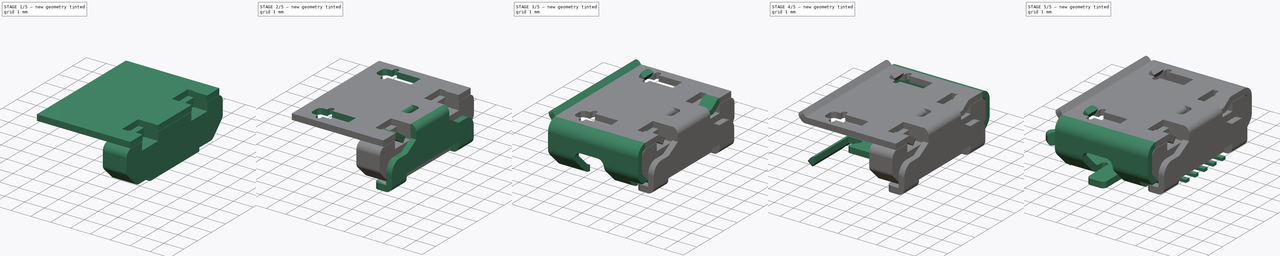
[diagram: build sequence overview — one tinted view per stage of 5, left to right]
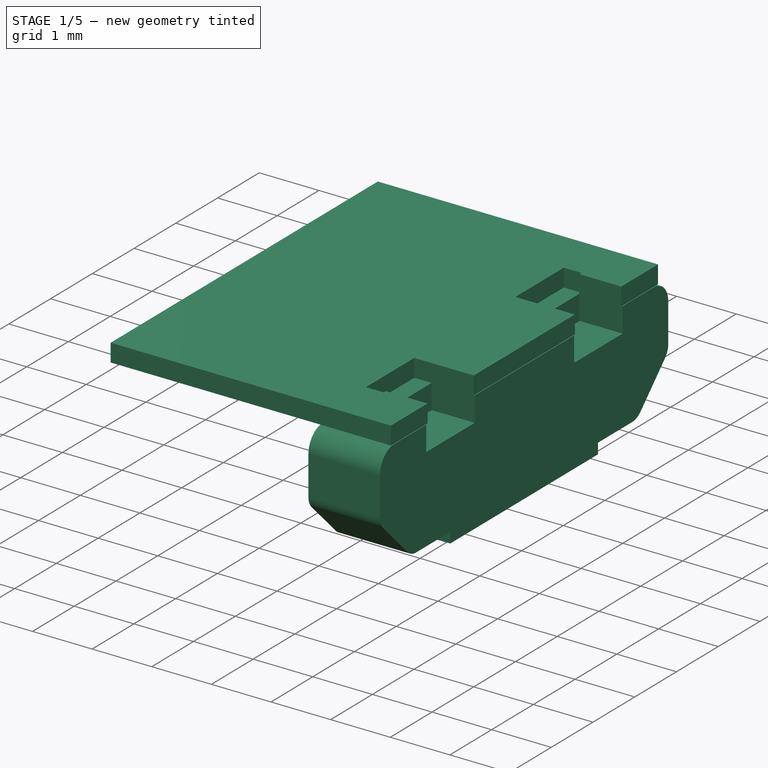
[diagram: stage 1 of 5 — iso view after this stage's code; geometry added in this stage tinted green]
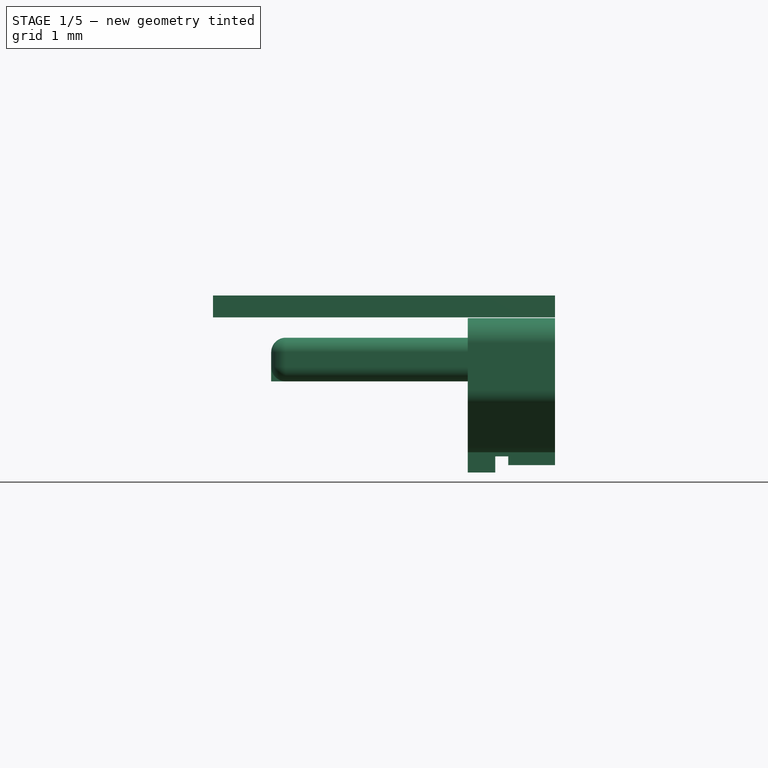
[diagram: stage 1 of 5 — front view after this stage's code; geometry added in this stage tinted green]
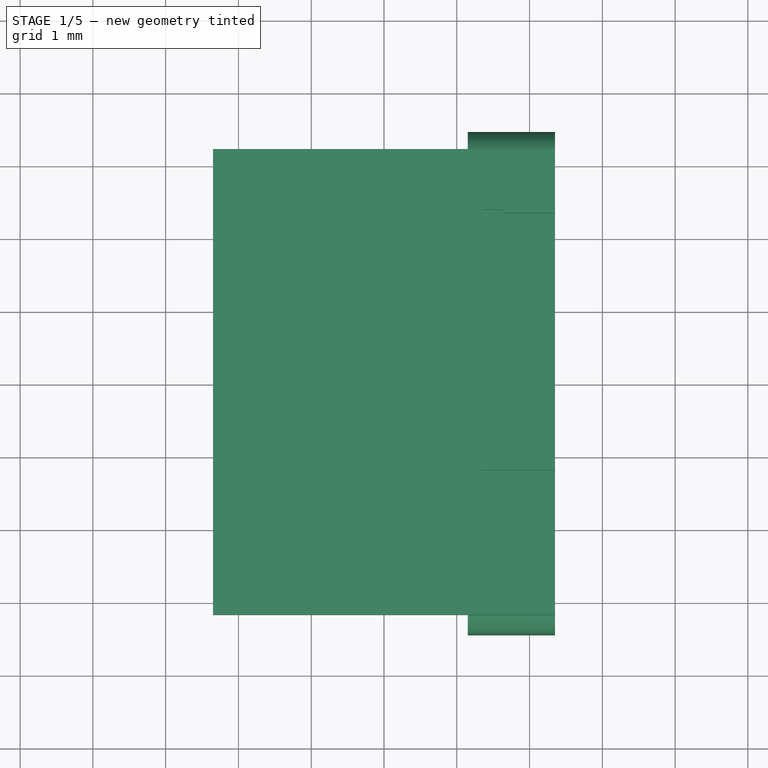
[diagram: stage 1 of 5 — top view after this stage's code; geometry added in this stage tinted green]
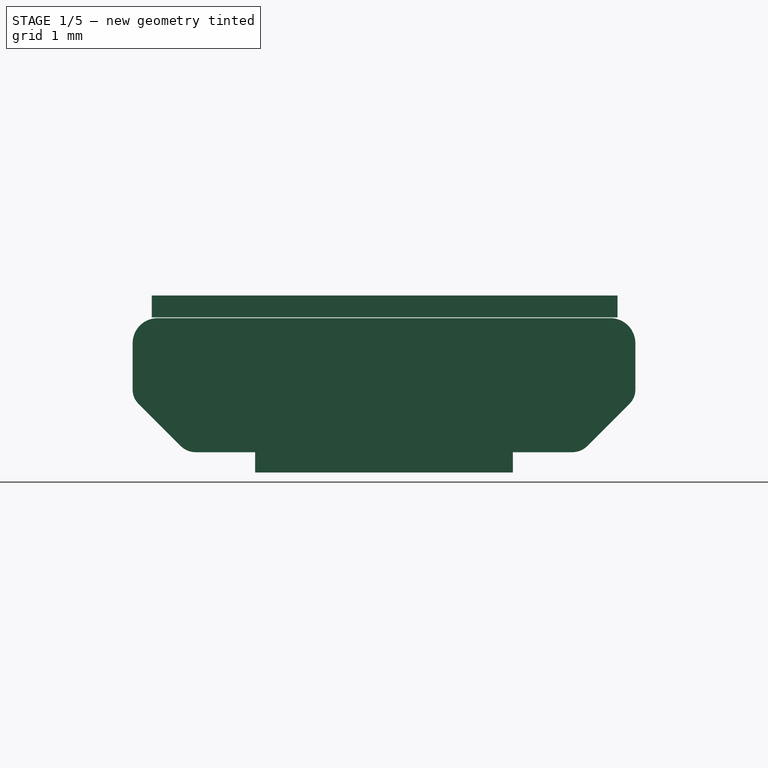
[diagram: stage 1 of 5 — right view after this stage's code; geometry added in this stage tinted green]
FCSTD DOCUMENT  (FreeCAD 0.19R24291 (Git))
Label: micro-usb-b-connector
License: All rights reserved
LicenseURL: http://en.wikipedia.org/wiki/All_rights_reserved
objects: Sketcher::SketchObject×29, Part::FeaturePython×20, PartDesign::Pad×15, PartDesign::Pocket×14, Part::Mirroring×6, Part::Fillet×3, Part::MultiFuse×3, App::DocumentObjectGroup×2, PartDesign::CoordinateSystem×1, PartDesign::Mirrored×1, Part::Cut×1, App::Part×1
note: 122 computed .brp shape members not serialized (recipe doc carries the construction recipe); baked Part::Feature solids carry a one-line shape summary decoded from their .brp

FEATURE [Sketcher::SketchObject] Sketch010
  FullyConstrained = false
  MapMode = 5
  Placement = pos=(2.72272e-08,-2.80244e-08,2.175) rot=(0,0,1;0rad)
  sketch-geometry (16):
    g0: LineSegment StartX=-2.35 StartY=3.2 StartZ=0 EndX=-2.35 EndY=-3.2 EndZ=0
    g1: LineSegment StartX=-2.35 StartY=-3.2 StartZ=0 EndX=2.35 EndY=-3.2 EndZ=0
    g2: LineSegment StartX=2.35 StartY=-3.2 StartZ=0 EndX=2.35 EndY=-2.32 EndZ=0
    g3: LineSegment StartX=2.35 StartY=-2.32 StartZ=0 EndX=1.649 EndY=-2.32 EndZ=0
    g4: LineSegment StartX=1.649 StartY=-2.32 StartZ=0 EndX=1.649 EndY=-2.37 EndZ=0
    g5: LineSegment StartX=1.649 StartY=-2.37 StartZ=0 EndX=1.351 EndY=-2.37 EndZ=0
    g6: LineSegment StartX=1.351 StartY=-2.37 StartZ=0 EndX=1.351 EndY=-1.211 EndZ=0
    g7: LineSegment StartX=1.351 StartY=-1.211 StartZ=0 EndX=2.348 EndY=-1.211 EndZ=0
    g8: LineSegment StartX=2.348 StartY=-1.211 StartZ=0 EndX=2.348 EndY=1.211 EndZ=0
    g9: LineSegment StartX=2.348 StartY=1.211 StartZ=0 EndX=1.351 EndY=1.211 EndZ=0
    g10: LineSegment StartX=1.351 StartY=1.211 StartZ=0 EndX=1.351 EndY=2.37 EndZ=0
    g11: LineSegment StartX=1.351 StartY=2.37 StartZ=0 EndX=1.649 EndY=2.37 EndZ=0
    g12: LineSegment StartX=1.649 StartY=2.37 StartZ=0 EndX=1.649 EndY=2.32 EndZ=0
    g13: LineSegment StartX=1.649 StartY=2.32 StartZ=0 EndX=2.35 EndY=2.32 EndZ=0
    g14: LineSegment StartX=2.35 StartY=2.32 StartZ=0 EndX=2.35 EndY=3.2 EndZ=0
    g15: LineSegment StartX=2.35 StartY=3.2 StartZ=0 EndX=-2.35 EndY=3.2 EndZ=0
  constraints (45):
    c: Vertical(g0)
    c: Horizontal(g1)
    c: Coincident(g1,g2)
    c: Vertical(g2)
    c: Coincident(g2,g3)
    c: Horizontal(g3)
    c: Coincident(g3,g4)
    c: Vertical(g4)
    c: Coincident(g4,g5)
    c: Coincident(g5,g6)
    c: Vertical(g6)
    c: Coincident(g6,g7)
    c: Horizontal(g7)
    c: Coincident(g7,g8)
    c: Vertical(g8)
    c: Coincident(g8,g9)
    c: Horizontal(g9)
    c: Coincident(g9,g10)
    c: Vertical(g10)
    c: Coincident(g10,g11)
    c: Horizontal(g11)
    c: Coincident(g11,g12)
    c: Vertical(g12)
    c: Coincident(g12,g13)
    c: Horizontal(g13)
    c: Coincident(g13,g14)
    c: Vertical(g14)
    c: Coincident(g14,g15)
    c: Horizontal(g15)
    c: Coincident(g0,g15)
    c: Coincident(g1,g0)
    c: DistanceX(g1,g1) = 4.7
    c: Symmetric(g0,g1,g-2)
    c: Symmetric(g0,g0,g-1)
    c: DistanceY(g0,g0) = 6.4
    c: Horizontal(g5)
    c: DistanceY(g2,g2) = 0.88
    c: DistanceX(g3,g3) = 0.701
    c: DistanceY(g4,g4) = 0.05
    c: DistanceX(g5,g5) = 0.298
    c: DistanceY(g6,g6) = 1.159
    c: DistanceX(g7,g7) = 0.997
    c: Symmetric(g9,g6,g-1)
    c: Symmetric(g11,g4,g-1)
    c: Symmetric(g13,g2,g-1)
FEATURE [PartDesign::Pad] Pad005  label="Top-part"
  AllowMultiFace = false
  Direction = (1,1,1)
  Length = 0.3
  Length2 = 100
  Placement = pos=(2.72272e-08,-2.80244e-08,2.175) rot=(0,0,1;0rad)
  Profile = -> Sketch010
  Type = 0
FEATURE [Sketcher::SketchObject] Sketch016
  FullyConstrained = false
  MapMode = 5
  Placement = pos=(1.15,-0.00833364,-0.00784296) rot=(0.57735,0.57735,0.57735;2.0944rad)
  sketch-geometry (24):
    g0: LineSegment StartX=-3.10933 StartY=2.17184 StartZ=0 EndX=3.10933 EndY=2.17184 EndZ=0
    g1: LineSegment StartX=1.77 StartY=0.05045 StartZ=0 EndX=-1.77 EndY=0.05045 EndZ=0
    g2: LineSegment StartX=-1.77 StartY=0.05045 StartZ=0 EndX=-1.77 EndY=0.32945 EndZ=0
    g3: LineSegment StartX=-1.77 StartY=0.32945 StartZ=0 EndX=-2.588 EndY=0.32945 EndZ=0
    g4: LineSegment StartX=-2.588 StartY=0.61845 StartZ=0 EndX=-2.588 EndY=0.32945 EndZ=0
    g5: LineSegment StartX=-3.37572 StartY=0.997459 StartZ=0 EndX=-2.79235 EndY=0.414096 EndZ=0
    g6: LineSegment StartX=-2.79235 StartY=0.414096 StartZ=0 EndX=-2.588 EndY=0.61845 EndZ=0
    g7: ArcOfCircle CenterX=-2.588 CenterY=0.61845 CenterZ=0 NormalX=0 NormalY=0 NormalZ=1 AngleXU=0 Radius=0.289 StartAngle=3.92699 EndAngle=4.71239
    g8: LineSegment StartX=-3.45333 StartY=1.82784 StartZ=0 EndX=-3.45333 EndY=1.18484 EndZ=0
    g9: LineSegment StartX=-3.45333 StartY=1.18484 StartZ=0 EndX=-3.18833 EndY=1.18484 EndZ=0
    g10: LineSegment StartX=-3.37572 StartY=0.997459 StartZ=0 EndX=-3.18833 EndY=1.18484 EndZ=0
    g11: ArcOfCircle CenterX=-3.18833 CenterY=1.18484 CenterZ=0 NormalX=0 NormalY=0 NormalZ=1 AngleXU=0 Radius=0.265 StartAngle=3.14159 EndAngle=3.92699
    g12: LineSegment StartX=-3.45333 StartY=1.82784 StartZ=0 EndX=-3.10933 EndY=1.82784 EndZ=0
    g13: LineSegment StartX=-3.10933 StartY=1.82784 StartZ=0 EndX=-3.10933 EndY=2.17184 EndZ=0
    g14: ArcOfCircle CenterX=-3.10933 CenterY=1.82784 CenterZ=0 NormalX=0 NormalY=0 NormalZ=1 AngleXU=0 Radius=0.344 StartAngle=1.5708 EndAngle=3.14159
    g15: LineSegment StartX=1.77 StartY=0.05045 StartZ=0 EndX=1.77 EndY=0.32945 EndZ=0
    g16: LineSegment StartX=1.77 StartY=0.32945 StartZ=0 EndX=2.588 EndY=0.32945 EndZ=0
    g17: ArcOfCircle CenterX=2.588 CenterY=0.61845 CenterZ=0 NormalX=0 NormalY=0 NormalZ=1 AngleXU=0 Radius=0.289 StartAngle=4.71239 EndAngle=5.49779
    g18: LineSegment StartX=2.79235 StartY=0.414096 StartZ=0 EndX=3.37572 EndY=0.997459 EndZ=0
    g19: LineSegment StartX=2.588 StartY=0.61845 StartZ=0 EndX=2.79235 EndY=0.414096 EndZ=0
    g20: LineSegment StartX=3.45333 StartY=1.82784 StartZ=0 EndX=3.45333 EndY=1.18484 EndZ=0
    g21: ArcOfCircle CenterX=3.18833 CenterY=1.18484 CenterZ=0 NormalX=0 NormalY=0 NormalZ=1 AngleXU=0 Radius=0.265 StartAngle=5.49779 EndAngle=6.28319
    g22: ArcOfCircle CenterX=3.10933 CenterY=1.82784 CenterZ=0 NormalX=0 NormalY=0 NormalZ=1 AngleXU=0 Radius=0.344 StartAngle=0 EndAngle=1.5708
    g23: LineSegment StartX=3.10933 StartY=2.17184 StartZ=0 EndX=3.10933 EndY=1.82784 EndZ=0
  constraints (66):
    c: Horizontal(g0)
    c: Horizontal(g1)
    c: Coincident(g1,g2)
    c: Vertical(g2)
    c: Coincident(g2,g3)
    c: Horizontal(g3)
    c: DistanceY(g2,g2) = 0.279
    c: DistanceY(g-1,g1) = 0.05045
    c: Vertical(g4)
    c: Coincident(g4,g3)
    c: Angle(g-1,g5) = 2.35619
    c: Coincident(g6,g4)
    c: Coincident(g6,g5)
    c: Perpendicular(g5,g6)
    c: Coincident(g7,g4)
    c: Coincident(g7,g3)
    c: Coincident(g7,g5)
    c: Radius(g7) = 0.289
    c: DistanceX(g3,g3) = 0.818
    c: Vertical(g8)
    c: Horizontal(g9)
    c: Coincident(g9,g8)
    c: Coincident(g10,g5)
    c: Coincident(g10,g9)
    c: Perpendicular(g10,g5)
    c: Coincident(g11,g9)
    c: Coincident(g11,g5)
    c: Coincident(g11,g8)
    c: Distance(g5) = 0.825
    c: Radius(g11) = 0.265
    c: Horizontal(g12)
    c: Coincident(g13,g12)
    c: Vertical(g13)
    c: Coincident(g12,g8)
    c: Coincident(g13,g0)
    c: Coincident(g14,g12)
    c: Coincident(g14,g8)
    c: Coincident(g14,g0)
    c: Radius(g14) = 0.344
    c: DistanceY(g8,g8) = 0.643
    c: Symmetric(g0,g0,g-2)
    c: Symmetric(g1,g1,g-2)
    c: DistanceX(g1,g1) = 3.54
    c: Coincident(g15,g1)
    c: Vertical(g15)
    c: Coincident(g16,g15)
    c: Horizontal(g16)
    c: Symmetric(g16,g3,g-2)
    c: Coincident(g17,g16)
    c: Symmetric(g17,g4,g-2)
    c: Coincident(g18,g17)
    c: Symmetric(g18,g5,g-2)
    c: Coincident(g19,g17)
    c: Coincident(g19,g17)
    c: Perpendicular(g18,g19)
    c: Vertical(g20)
    c: Symmetric(g20,g8,g-2)
    c: Symmetric(g8,g20,g-2)
    c: Coincident(g21,g18)
    c: Coincident(g21,g20)
    c: Symmetric(g21,g9,g-2)
    c: Coincident(g22,g0)
    c: Coincident(g22,g20)
    c: Vertical(g23)
    c: Coincident(g23,g0)
    c: Coincident(g22,g23)
FEATURE [PartDesign::Pad] Pad008
  AllowMultiFace = false
  Direction = (1,1,1)
  Length = 1.2
  Length2 = 100
  Placement = pos=(1.15,-0.00833364,-0.00784296) rot=(0.57735,0.57735,0.57735;2.0944rad)
  Profile = -> Sketch016
  Type = 0
FEATURE [Sketcher::SketchObject] Sketch017
  FullyConstrained = false
  MapMode = 5
  Placement = pos=(0,0,0) rot=(1,0,0;1.5708rad)
  sketch-geometry (6):
    g0: LineSegment StartX=1.529 StartY=0 StartZ=0 EndX=1.529 EndY=0.264 EndZ=0
    g1: LineSegment StartX=1.529 StartY=0.264 StartZ=0 EndX=1.708 EndY=0.264 EndZ=0
    g2: LineSegment StartX=1.708 StartY=0.264 StartZ=0 EndX=1.708 EndY=0.145 EndZ=0
    g3: LineSegment StartX=1.708 StartY=0.145 StartZ=0 EndX=2.358 EndY=0.145 EndZ=0
    g4: LineSegment StartX=2.358 StartY=0.145 StartZ=0 EndX=2.358 EndY=0 EndZ=0
    g5: LineSegment StartX=2.358 StartY=0 StartZ=0 EndX=1.529 EndY=0 EndZ=0
  constraints (18):
    c: PointOnObject(g0,g-1)
    c: Vertical(g0)
    c: Coincident(g0,g1)
    c: Horizontal(g1)
    c: Coincident(g1,g2)
    c: Vertical(g2)
    c: Coincident(g2,g3)
    c: Horizontal(g3)
    c: Coincident(g3,g4)
    c: PointOnObject(g4,g-1)
    c: Vertical(g4)
    c: Coincident(g4,g5)
    c: Coincident(g5,g0)
    c: DistanceY(g0,g0) = 0.264
    c: DistanceX(g1,g1) = 0.179  'Constraint15'
    c: DistanceX(g5,g5) = 0.829
    c: DistanceY(g4,g4) = 0.145
    c: DistanceX(g-1,g0) = 1.529
FEATURE [PartDesign::Pad] Pad009
  AllowMultiFace = false
  Direction = (1,1,1)
  Length = 3.6
  Length2 = 100
  Midplane = true
  Placement = pos=(0,0,0) rot=(1,0,0;1.5708rad)
  Profile = -> Sketch017
  Type = 0
FEATURE [Part::Cut] Cut
  Base = -> Pad008
  Tool = -> Pad009
FEATURE [Sketcher::SketchObject] Sketch018
  FullyConstrained = false
  MapMode = 5
  Placement = pos=(0,1e-16,0.145) rot=(1,0,0;3.14159rad)
  Support = -> [Cut]
  sketch-geometry (21):
    g0: LineSegment StartX=1.685 StartY=-1.177 StartZ=0 EndX=1.899 EndY=-1.177 EndZ=0
    g1: LineSegment StartX=1.899 StartY=-1.177 StartZ=0 EndX=1.899 EndY=-1.424 EndZ=0
    g2: LineSegment StartX=1.899 StartY=-1.424 StartZ=0 EndX=1.685 EndY=-1.424 EndZ=0
    g3: LineSegment StartX=1.685 StartY=-1.424 StartZ=0 EndX=1.685 EndY=-1.177 EndZ=0
    g4: LineSegment StartX=1.685 StartY=-0.52 StartZ=0 EndX=1.899 EndY=-0.52 EndZ=0
    g5: LineSegment StartX=1.899 StartY=-0.52 StartZ=0 EndX=1.899 EndY=-0.767 EndZ=0
    g6: LineSegment StartX=1.899 StartY=-0.767 StartZ=0 EndX=1.685 EndY=-0.767 EndZ=0
    g7: LineSegment StartX=1.685 StartY=-0.767 StartZ=0 EndX=1.685 EndY=-0.52 EndZ=0
    g8: LineSegment StartX=1.685 StartY=1.424 StartZ=0 EndX=1.685 EndY=-1.424 EndZ=0
    g9: LineSegment StartX=1.685 StartY=0.1235 StartZ=0 EndX=1.899 EndY=0.1235 EndZ=0
    g10: LineSegment StartX=1.899 StartY=0.1235 StartZ=0 EndX=1.899 EndY=-0.1235 EndZ=0
    g11: LineSegment StartX=1.899 StartY=-0.1235 StartZ=0 EndX=1.685 EndY=-0.1235 EndZ=0
    g12: LineSegment StartX=1.685 StartY=-0.1235 StartZ=0 EndX=1.685 EndY=0.1235 EndZ=0
    g13: LineSegment StartX=1.685 StartY=0.767 StartZ=0 EndX=1.899 EndY=0.767 EndZ=0
    g14: LineSegment StartX=1.899 StartY=0.767 StartZ=0 EndX=1.899 EndY=0.52 EndZ=0
    g15: LineSegment StartX=1.899 StartY=0.52 StartZ=0 EndX=1.685 EndY=0.52 EndZ=0
    g16: LineSegment StartX=1.685 StartY=0.52 StartZ=0 EndX=1.685 EndY=0.767 EndZ=0
    g17: LineSegment StartX=1.685 StartY=1.424 StartZ=0 EndX=1.899 EndY=1.424 EndZ=0
    g18: LineSegment StartX=1.899 StartY=1.424 StartZ=0 EndX=1.899 EndY=1.177 EndZ=0
    g19: LineSegment StartX=1.899 StartY=1.177 StartZ=0 EndX=1.685 EndY=1.177 EndZ=0
    g20: LineSegment StartX=1.685 StartY=1.177 StartZ=0 EndX=1.685 EndY=1.424 EndZ=0
  constraints (61):
    c: Coincident(g0,g1)
    c: Coincident(g1,g2)
    c: Coincident(g2,g3)
    c: Coincident(g3,g0)
    c: Horizontal(g0)
    c: Horizontal(g2)
    c: Vertical(g1)
    c: Vertical(g3)
    c: DistanceX(g0,g0) = 0.214
    c: DistanceY(g3,g3) = 0.247
    c: Coincident(g4,g5)
    c: Coincident(g5,g6)
    c: Coincident(g6,g7)
    c: Coincident(g7,g4)
    c: Horizontal(g4)
    c: Horizontal(g6)
    c: Vertical(g5)
    c: Vertical(g7)
    c: Vertical(g8)
    c: Coincident(g8,g2)
    c: PointOnObject(g6,g8)
    c: DistanceX(g-1,g8) = 1.685
    c: Equal(g7,g3)
    c: Equal(g6,g0)
    c: DistanceY(g2,g-1) = 1.424
    c: DistanceY(g0,g5) = 0.41
    c: Symmetric(g8,g2,g-1)
    c: Coincident(g9,g10)
    c: Coincident(g10,g11)
    c: Coincident(g11,g12)
    c: Coincident(g12,g9)
    c: Horizontal(g9)
    c: Horizontal(g11)
    c: Vertical(g10)
    c: Vertical(g12)
    c: PointOnObject(g11,g8)
    c: Symmetric(g11,g9,g-1)
    c: Equal(g4,g11)
    c: Equal(g10,g5)
    c: Coincident(g13,g14)
    c: Coincident(g14,g15)
    c: Coincident(g15,g16)
    c: Coincident(g16,g13)
    c: Horizontal(g13)
    c: Horizontal(g15)
    c: Vertical(g14)
    c: Vertical(g16)
    c: PointOnObject(g15,g8)
    c: Symmetric(g13,g5,g-1)
    c: Symmetric(g15,g4,g-1)
    c: Coincident(g17,g18)
    c: Coincident(g18,g19)
    c: Coincident(g19,g20)
    c: Coincident(g20,g17)
    c: Horizontal(g17)
    c: Horizontal(g19)
    c: Vertical(g18)
    c: Vertical(g20)
    c: Coincident(g17,g8)
    c: Symmetric(g17,g1,g-1)
    c: Symmetric(g19,g0,g-1)
FEATURE [PartDesign::Pocket] Pocket007
  AllowMultiFace = false
  Length = 0.119
  Length2 = 100
  Profile = -> Sketch018
  Type = 0
FEATURE [Sketcher::SketchObject] Sketch019
  ExternalGeometry = -> [Pocket007]
  FullyConstrained = false
  MapMode = 5
  Placement = pos=(-2e-16,0,2.164) rot=(0,0,1;0rad)
  Support = -> [Pocket007]
  sketch-geometry (8):
    g0: LineSegment StartX=1.63 StartY=-1.191 StartZ=0 EndX=2.35 EndY=-1.191 EndZ=0
    g1: LineSegment StartX=2.35 StartY=-1.191 StartZ=0 EndX=2.35 EndY=-2.351 EndZ=0
    g2: LineSegment StartX=2.35 StartY=-2.351 StartZ=0 EndX=1.63 EndY=-2.351 EndZ=0
    g3: LineSegment StartX=1.63 StartY=-2.351 StartZ=0 EndX=1.63 EndY=-1.191 EndZ=0
    g4: LineSegment StartX=1.63 StartY=2.351 StartZ=0 EndX=2.35 EndY=2.351 EndZ=0
    g5: LineSegment StartX=2.35 StartY=2.351 StartZ=0 EndX=2.35 EndY=1.191 EndZ=0
    g6: LineSegment StartX=2.35 StartY=1.191 StartZ=0 EndX=1.63 EndY=1.191 EndZ=0
    g7: LineSegment StartX=1.63 StartY=1.191 StartZ=0 EndX=1.63 EndY=2.351 EndZ=0
  constraints (23):
    c: Coincident(g0,g1)
    c: Coincident(g1,g2)
    c: Coincident(g2,g3)
    c: Coincident(g3,g0)
    c: Horizontal(g0)
    c: Horizontal(g2)
    c: Vertical(g1)
    c: Vertical(g3)
    c: PointOnObject(g0,g-3)
    c: DistanceY(g3,g3) = 1.16
    c: DistanceX(g0,g0) = 0.72
    c: DistanceY(g0,g-1) = 1.191
    c: Coincident(g4,g5)
    c: Coincident(g5,g6)
    c: Coincident(g6,g7)
    c: Coincident(g7,g4)
    c: Horizontal(g4)
    c: Horizontal(g6)
    c: Vertical(g5)
    c: Vertical(g7)
    c: PointOnObject(g5,g-3)
    c: Symmetric(g6,g0,g-1)
    c: Symmetric(g4,g1,g-1)
FEATURE [PartDesign::Pocket] Pocket008
  AllowMultiFace = false
  Length = 0.414
  Length2 = 100
  Profile = -> Sketch019
  Type = 0
FEATURE [Sketcher::SketchObject] Sketch020
  FullyConstrained = false
  MapMode = 5
  Placement = pos=(-2e-16,0,2.164) rot=(0,0,1;0rad)
  Support = -> [Pocket008]
  sketch-geometry (6):
    g0: LineSegment StartX=1.249 StartY=0.41 StartZ=0 EndX=1.749 EndY=0.41 EndZ=0
    g1: LineSegment StartX=1.749 StartY=0.41 StartZ=0 EndX=1.749 EndY=-0.41 EndZ=0
    g2: LineSegment StartX=1.749 StartY=-0.41 StartZ=0 EndX=1.249 EndY=-0.41 EndZ=0
    g3: LineSegment StartX=1.249 StartY=0.41 StartZ=0 EndX=1.146 EndY=0.513 EndZ=0
    g4: LineSegment StartX=1.146 StartY=0.513 StartZ=0 EndX=1.146 EndY=-0.513 EndZ=0
    g5: LineSegment StartX=1.146 StartY=-0.513 StartZ=0 EndX=1.249 EndY=-0.41 EndZ=0
  constraints (18):
    c: Coincident(g0,g1)
    c: Coincident(g1,g2)
    c: Horizontal(g0)
    c: Horizontal(g2)
    c: Vertical(g1)
    c: Symmetric(g0,g1,g-1)
    c: DistanceY(g1,g1) = 0.82
    c: Symmetric(g0,g2,g-1)
    c: DistanceX(g0,g0) = 0.5
    c: Coincident(g0,g3)
    c: Coincident(g3,g4)
    c: Vertical(g4)
    c: Coincident(g4,g5)
    c: Coincident(g5,g2)
    c: Symmetric(g4,g3,g-1)
    c: Angle(g3,g-1) = 0.785398
    c: DistanceY(g4,g4) = 1.026
    c: DistanceX(g-1,g3) = 1.146
FEATURE [PartDesign::Pocket] Pocket009
  AllowMultiFace = false
  Length = 0.27
  Length2 = 100
  Profile = -> Sketch020
  Type = 0
FEATURE [Part::FeaturePython] Clone009  label="Part-back"  # Draft clone (typed FeaturePython)
  Objects = -> [Pocket009]
  Scale = (1,1,1)
FEATURE [Sketcher::SketchObject] Sketch029
  FullyConstrained = false
  MapMode = 5
  Placement = pos=(-1.55,1.37096e-08,-0.00500042) rot=(0.57735,0.57735,0.57735;2.0944rad)
  sketch-geometry (30):
    g0: LineSegment StartX=-1.75 StartY=1.6 StartZ=0 EndX=0 EndY=1.6 EndZ=0
    g1: LineSegment StartX=-1.55 StartY=1.9 StartZ=0 EndX=-1.55 EndY=1.3 EndZ=0
    g2: LineSegment StartX=-1.75 StartY=1.7 StartZ=0 EndX=-1.75 EndY=1.5 EndZ=0
    g3: ArcOfCircle CenterX=-1.55 CenterY=1.7 CenterZ=0 NormalX=0 NormalY=0 NormalZ=1 AngleXU=0 Radius=0.2 StartAngle=1.5708 EndAngle=3.14159
    g4: ArcOfCircle CenterX=-1.55 CenterY=1.5 CenterZ=0 NormalX=0 NormalY=0 NormalZ=1 AngleXU=0 Radius=0.2 StartAngle=3.14159 EndAngle=4.71239
    g5: LineSegment StartX=-1.55 StartY=1.9 StartZ=0 EndX=1.55 EndY=1.9 EndZ=0
    g6: ArcOfCircle CenterX=1.55 CenterY=1.7 CenterZ=0 NormalX=0 NormalY=0 NormalZ=1 AngleXU=0 Radius=0.2 StartAngle=6.28319 EndAngle=7.85398
    g7: ArcOfCircle CenterX=1.55 CenterY=1.5 CenterZ=0 NormalX=0 NormalY=0 NormalZ=1 AngleXU=0 Radius=0.2 StartAngle=4.71239 EndAngle=6.28319
    g8: LineSegment StartX=1.75 StartY=1.7 StartZ=0 EndX=1.75 EndY=1.5 EndZ=0
    g9: LineSegment StartX=-1.55 StartY=1.3 StartZ=0 EndX=-1.486 EndY=1.3 EndZ=0
    g10: LineSegment StartX=-1.486 StartY=1.3 StartZ=0 EndX=-1.486 EndY=1.514 EndZ=0
    g11: LineSegment StartX=-1.486 StartY=1.514 StartZ=0 EndX=-1.115 EndY=1.514 EndZ=0
    g12: LineSegment StartX=-1.115 StartY=1.514 StartZ=0 EndX=-1.115 EndY=1.3 EndZ=0
    g13: LineSegment StartX=-1.115 StartY=1.3 StartZ=0 EndX=-0.837 EndY=1.3 EndZ=0
    g14: LineSegment StartX=-0.837 StartY=1.3 StartZ=0 EndX=-0.837 EndY=1.514 EndZ=0
    g15: LineSegment StartX=-0.837 StartY=1.514 StartZ=0 EndX=-0.466 EndY=1.514 EndZ=0
    g16: LineSegment StartX=-0.466 StartY=1.514 StartZ=0 EndX=-0.466 EndY=1.3 EndZ=0
    g17: LineSegment StartX=-0.466 StartY=1.3 StartZ=0 EndX=-0.188 EndY=1.3 EndZ=0
    g18: LineSegment StartX=-0.188 StartY=1.3 StartZ=0 EndX=-0.188 EndY=1.514 EndZ=0
    g19: LineSegment StartX=-0.188 StartY=1.514 StartZ=0 EndX=0.183 EndY=1.514 EndZ=0
    g20: LineSegment StartX=0.183 StartY=1.514 StartZ=0 EndX=0.183 EndY=1.3 EndZ=0
    g21: LineSegment StartX=0.183 StartY=1.3 StartZ=0 EndX=0.461 EndY=1.3 EndZ=0
    g22: LineSegment StartX=0.461 StartY=1.3 StartZ=0 EndX=0.461 EndY=1.514 EndZ=0
    g23: LineSegment StartX=0.461 StartY=1.514 StartZ=0 EndX=0.832 EndY=1.514 EndZ=0
    g24: LineSegment StartX=0.832 StartY=1.514 StartZ=0 EndX=0.832 EndY=1.3 EndZ=0
    g25: LineSegment StartX=0.832 StartY=1.3 StartZ=0 EndX=1.11 EndY=1.3 EndZ=0
    g26: LineSegment StartX=1.11 StartY=1.3 StartZ=0 EndX=1.11 EndY=1.514 EndZ=0
    g27: LineSegment StartX=1.11 StartY=1.514 StartZ=0 EndX=1.481 EndY=1.514 EndZ=0
    g28: LineSegment StartX=1.481 StartY=1.514 StartZ=0 EndX=1.481 EndY=1.3 EndZ=0
    g29: LineSegment StartX=1.481 StartY=1.3 StartZ=0 EndX=1.55 EndY=1.3 EndZ=0
  constraints (90):
    c: PointOnObject(g0,g-2)
    c: DistanceY(g-1,g0) = 1.6
    c: DistanceX(g0,g0) = 1.75
    c: DistanceY(g1,g1) = 0.6
    c: Symmetric(g1,g1,g0)
    c: DistanceX(g1,g0) = 1.55
    c: Vertical(g2)
    c: PointOnObject(g0,g2)
    c: Symmetric(g2,g2,g0)
    c: PointOnObject(g3,g1)
    c: Coincident(g3,g1)
    c: Coincident(g3,g2)
    c: Symmetric(g4,g3,g0)
    c: Coincident(g4,g2)
    c: Coincident(g4,g1)
    c: Horizontal(g5)
    c: Coincident(g5,g1)
    c: Symmetric(g1,g5,g-2)
    c: Coincident(g6,g5)
    c: Symmetric(g6,g3,g-2)
    c: Symmetric(g6,g2,g-2)
    c: Vertical(g8)
    c: Coincident(g8,g6)
    c: Coincident(g7,g8)
    c: Symmetric(g7,g4,g-2)
    c: Symmetric(g7,g2,g-2)
    c: Symmetric(g7,g1,g-2)
    c: Radius(g3) = 0.2
    c: Coincident(g9,g1)
    c: Horizontal(g9)
    c: DistanceX(g9,g9) = 0.064
    c: Vertical(g10)
    c: Coincident(g10,g9)
    c: DistanceY(g10,g10) = 0.214
    c: Horizontal(g11)
    c: Coincident(g11,g10)
    c: DistanceX(g11,g11) = 0.371
    c: Coincident(g12,g11)
    c: Vertical(g12)
    c: Equal(g12,g10)
    c: Coincident(g13,g12)
    c: Horizontal(g13)
    c: DistanceX(g13,g13) = 0.278
    c: Vertical(g14)
    c: Coincident(g14,g13)
    c: Equal(g14,g12)
    c: Horizontal(g15)
    c: Coincident(g15,g14)
    c: Equal(g15,g11)
    c: Vertical(g16)
    c: Coincident(g16,g15)
    c: Equal(g16,g14)
    c: Horizontal(g17)
    c: Coincident(g17,g16)
    c: Equal(g17,g13)
    c: Vertical(g18)
    c: Coincident(g18,g17)
    c: Equal(g18,g16)
    c: Coincident(g19,g18)
    c: Horizontal(g19)
    c: Equal(g19,g15)
    c: Coincident(g19,g20)
    c: Vertical(g20)
    c: Coincident(g20,g21)
    c: Horizontal(g21)
    c: Equal(g20,g18)
    c: Equal(g21,g17)
    c: Coincident(g21,g22)
    c: Vertical(g22)
    c: Coincident(g22,g23)
    c: Horizontal(g23)
    c: Coincident(g23,g24)
    c: Vertical(g24)
    c: Equal(g23,g19)
    c: Equal(g22,g24)
    c: Equal(g24,g20)
    c: Coincident(g25,g24)
    c: Horizontal(g25)
    c: Equal(g25,g21)
    c: Coincident(g26,g25)
    c: Vertical(g26)
    c: Equal(g26,g24)
    c: Coincident(g27,g26)
    c: Horizontal(g27)
    c: Equal(g27,g23)
    c: Coincident(g28,g27)
    c: Vertical(g28)
    c: Coincident(g29,g28)
    c: Coincident(g29,g7)
    c: Horizontal(g29)
FEATURE [PartDesign::Pad] Pad013
  AllowMultiFace = false
  Direction = (1,1,1)
  Length = 2.7
  Length2 = 100
  Placement = pos=(-1.55,1.37096e-08,-0.00500042) rot=(0.57735,0.57735,0.57735;2.0944rad)
  Profile = -> Sketch029
  Type = 0
FEATURE [Part::Fillet] Fillet001
  Base = -> Pad013
  Edges = 7 edges r=0.2: [Edge3,Edge6,Edge72,Edge75,Edge78,Edge81,Edge83]
FEATURE [Part::FeaturePython] Clone014  label="Part-11"  # Draft clone (typed FeaturePython)
  Objects = -> [Fillet001]
  Scale = (1,1,1)
FEATURE [Part::MultiFuse] Fusion002  label="inner-union"
  Shapes = -> [Clone014,Clone009]
FEATURE [App::DocumentObjectGroup] Group002  label="Intermediate-parts"
  Group = -> [Fusion001,Fusion002]
FEATURE [Part::FeaturePython] Clone018  label="inner"  # Draft clone (typed FeaturePython)
  Objects = -> [Fusion002]
  Scale = (1,1,1)
FEATURE [App::Part] micro_usb_b_part
  Group = -> [LCS_0,Array,Sketch021,Pad010,Clone010,Array001,Pad014,Sketch030,Clone015,Pocket001,Sketch004,Pad002,Part__Mirroring004,Clone011,Part__Mirroring003,Pocket010,Clone012,Sketch014,Sketch015,Pad007,Pocket012,Sketch006,Pocket013,Clone013,Sketch026,Pocket011,Fusion,Clone001,Pad011,Sketch027,Part__Mirroring005,Sketch,Clone,Clone002,Clone008,Pad005,Sketch012,Pad006,Sketch013,Pocket006,Pad,Part__Mirroring,+51 more]
  Origin = -> Origin
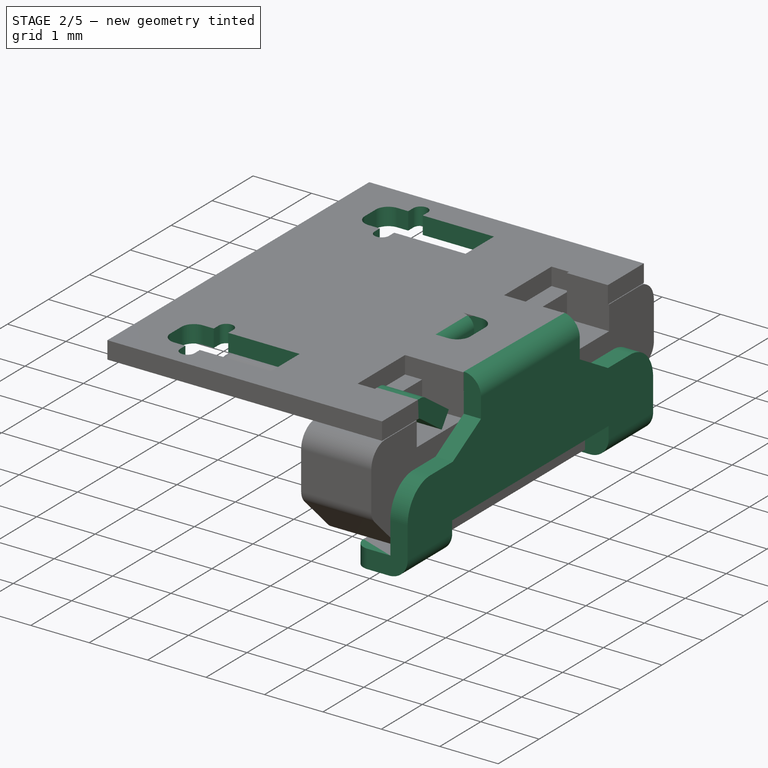
[diagram: stage 2 of 5 — iso view after this stage's code; geometry added in this stage tinted green]
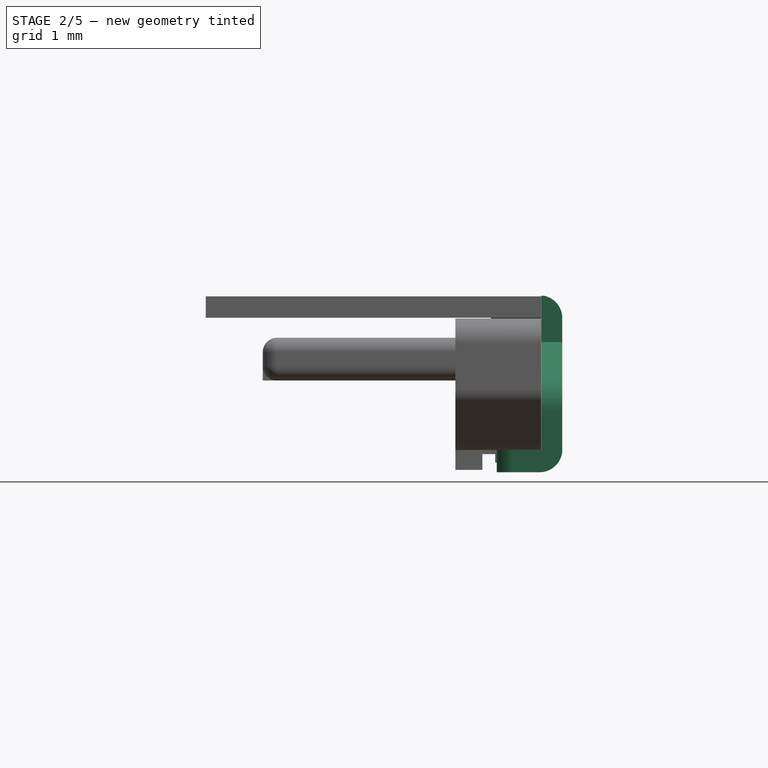
[diagram: stage 2 of 5 — front view after this stage's code; geometry added in this stage tinted green]
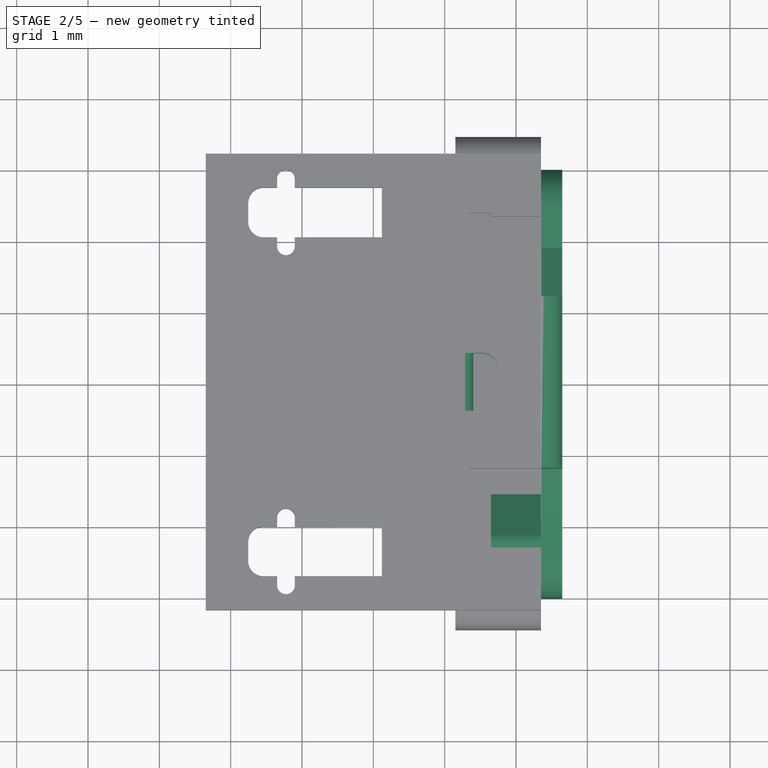
[diagram: stage 2 of 5 — top view after this stage's code; geometry added in this stage tinted green]
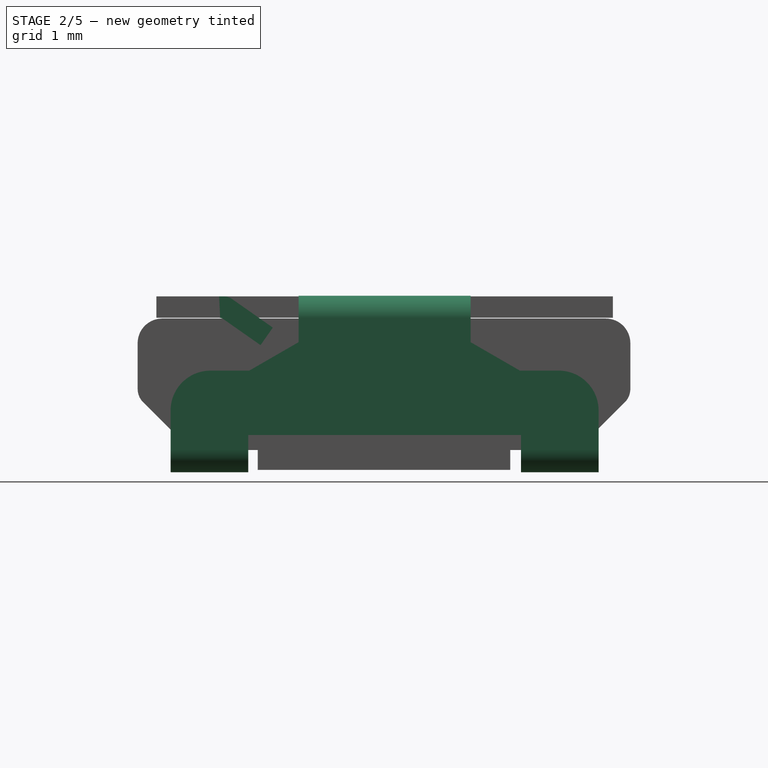
[diagram: stage 2 of 5 — right view after this stage's code; geometry added in this stage tinted green]
FEATURE [Sketcher::SketchObject] Sketch011
  FullyConstrained = false
  MapMode = 5
  Placement = pos=(2.72272e-08,-2.80244e-08,2.475) rot=(0,0,1;0rad)
  Support = -> [Pad005]
  sketch-geometry (25):
    g0: LineSegment StartX=-1.101 StartY=-2.028 StartZ=0 EndX=0.119 EndY=-2.028 EndZ=0
    g1: LineSegment StartX=0.119 StartY=-2.028 StartZ=0 EndX=0.119 EndY=-2.724 EndZ=0
    g2: LineSegment StartX=0.119 StartY=-2.724 StartZ=0 EndX=-1.101 EndY=-2.724 EndZ=0
    g3: LineSegment StartX=-1.349 StartY=-2.851 StartZ=0 EndX=-1.101 EndY=-2.851 EndZ=0
    g4: LineSegment StartX=-1.75359 StartY=-2.376 StartZ=0 EndX=0.119 EndY=-2.376 EndZ=0
    g5: LineSegment StartX=-1.101 StartY=-2.724 StartZ=0 EndX=-1.101 EndY=-2.851 EndZ=0
    g6: ArcOfCircle CenterX=-1.225 CenterY=-2.851 CenterZ=0 NormalX=0 NormalY=0 NormalZ=1 AngleXU=0 Radius=0.124 StartAngle=3.14159 EndAngle=6.28319
    g7: LineSegment StartX=-1.349 StartY=-2.851 StartZ=0 EndX=-1.349 EndY=-2.724 EndZ=0
    g8: LineSegment StartX=-1.349 StartY=-2.724 StartZ=0 EndX=-1.539 EndY=-2.724 EndZ=0
    g9: LineSegment StartX=-1.101 StartY=-2.028 StartZ=0 EndX=-1.101 EndY=-1.901 EndZ=0
    g10: ArcOfCircle CenterX=-1.225 CenterY=-1.901 CenterZ=0 NormalX=0 NormalY=0 NormalZ=1 AngleXU=0 Radius=0.124 StartAngle=0 EndAngle=3.14159
    g11: LineSegment StartX=-1.349 StartY=-1.901 StartZ=0 EndX=-1.349 EndY=-2.028 EndZ=0
    g12: LineSegment StartX=-1.349 StartY=-2.028 StartZ=0 EndX=-1.539 EndY=-2.028 EndZ=0
    g13: LineSegment StartX=1.401 StartY=0 StartZ=0 EndX=1.401 EndY=-0.406 EndZ=0
    g14: LineSegment StartX=1.747 StartY=0 StartZ=0 EndX=1.747 EndY=-0.181 EndZ=0
    g15: LineSegment StartX=1.401 StartY=0 StartZ=0 EndX=1.747 EndY=0 EndZ=0
    g16: LineSegment StartX=1.401 StartY=-0.406 StartZ=0 EndX=1.522 EndY=-0.406 EndZ=0
    g17: LineSegment StartX=1.522 StartY=-0.406 StartZ=0 EndX=1.522 EndY=-0.181 EndZ=0
    g18: LineSegment StartX=1.522 StartY=-0.181 StartZ=0 EndX=1.747 EndY=-0.181 EndZ=0
    g19: ArcOfCircle CenterX=1.522 CenterY=-0.181 CenterZ=0 NormalX=0 NormalY=0 NormalZ=1 AngleXU=0 Radius=0.225 StartAngle=4.71239 EndAngle=6.28319
    g20: LineSegment StartX=-1.75359 StartY=-2.24259 StartZ=0 EndX=-1.75359 EndY=-2.50941 EndZ=0
    g21: ArcOfCircle CenterX=-1.539 CenterY=-2.50941 CenterZ=0 NormalX=0 NormalY=0 NormalZ=1 AngleXU=0 Radius=0.214586 StartAngle=3.14159 EndAngle=4.71239
    g22: LineSegment StartX=-1.75359 StartY=-2.50941 StartZ=0 EndX=-1.539 EndY=-2.50941 EndZ=0
    g23: LineSegment StartX=-1.539 StartY=-2.50941 StartZ=0 EndX=-1.539 EndY=-2.724 EndZ=0
    g24: ArcOfCircle CenterX=-1.539 CenterY=-2.24259 CenterZ=0 NormalX=0 NormalY=0 NormalZ=1 AngleXU=0 Radius=0.214586 StartAngle=1.5708 EndAngle=3.14159
  constraints (71):
    c: Horizontal(g0)
    c: Coincident(g0,g1)
    c: Vertical(g1)
    c: Coincident(g1,g2)
    c: Horizontal(g2)
    c: Horizontal(g3)
    c: PointOnObject(g4,g1)
    c: Symmetric(g0,g1,g4)
    c: DistanceY(g1,g1) = 0.696
    c: DistanceX(g-1,g0) = 0.119
    c: DistanceY(g0,g-1) = 2.028
    c: Vertical(g5)
    c: Coincident(g2,g5)
    c: DistanceX(g2,g2) = 1.22
    c: Coincident(g3,g5)
    c: DistanceX(g3,g3) = 0.248
    c: PointOnObject(g6,g3)
    c: Coincident(g6,g3)
    c: Coincident(g6,g3)
    c: DistanceY(g5,g5) = 0.127
    c: Coincident(g3,g7)
    c: Vertical(g7)
    c: Coincident(g7,g8)
    c: Horizontal(g8)
    c: PointOnObject(g7,g2)
    c: Vertical(g9)
    c: Coincident(g9,g0)
    c: Symmetric(g9,g3,g4)
    c: Symmetric(g6,g10,g4)
    c: Coincident(g10,g9)
    c: Vertical(g11)
    c: Coincident(g11,g12)
    c: Horizontal(g12)
    c: Coincident(g11,g10)
    c: Symmetric(g12,g8,g4)
    c: Symmetric(g11,g7,g4)
    c: Vertical(g13)
    c: Vertical(g14)
    c: Coincident(g15,g13)
    c: Coincident(g15,g14)
    c: Horizontal(g15)
    c: DistanceX(g15,g15) = 0.346
    c: Coincident(g16,g13)
    c: Horizontal(g16)
    c: Coincident(g16,g17)
    c: Vertical(g17)
    c: Coincident(g17,g18)
    c: Coincident(g18,g14)
    c: Horizontal(g18)
    c: Coincident(g19,g17)
    c: Coincident(g19,g16)
    c: Coincident(g19,g14)
    c: DistanceY(g13,g13) = 0.406
    c: Radius(g19) = 0.225
    c: PointOnObject(g13,g-1)
    c: DistanceX(g-1,g13) = 1.401
    c: Vertical(g20)
    c: PointOnObject(g4,g20)
    c: Coincident(g22,g20)
    c: Coincident(g22,g21)
    c: Horizontal(g22)
    c: Vertical(g23)
    c: Coincident(g23,g21)
    c: Coincident(g23,g8)
    c: Coincident(g21,g8)
    c: Coincident(g21,g20)
    c: DistanceX(g8,g8) = 0.19
    c: Symmetric(g20,g20,g4)
    c: Coincident(g24,g12)
    c: Coincident(g24,g20)
    c: Symmetric(g21,g24,g4)
FEATURE [PartDesign::Pocket] Pocket004  label="Top-part-pokets"
  AllowMultiFace = false
  Length = 5
  Length2 = 100
  Placement = pos=(2.72272e-08,-2.80244e-08,2.175) rot=(0,0,1;0rad)
  Profile = -> Sketch011
  Type = 1
FEATURE [PartDesign::Mirrored] Mirrored
  MirrorPlane = -> Sketch011 [H_Axis]
  Originals = -> [Pocket004]
  Placement = pos=(2.72272e-08,-2.80244e-08,2.175) rot=(0,0,1;0rad)
FEATURE [Sketcher::SketchObject] Sketch022
  FullyConstrained = false
  MapMode = 5
  Placement = pos=(1.65,-2.32,2.175) rot=(0.57735,0.57735,0.57735;2.0944rad)
  sketch-geometry (11):
    g0: LineSegment StartX=0 StartY=0 StartZ=0 EndX=0 EndY=0.3 EndZ=0
    g1: LineSegment StartX=0.0602255 StartY=-0.018989 StartZ=0 EndX=0.580713 EndY=-0.383438 EndZ=0
    g2: LineSegment StartX=0.182217 StartY=0.262633 StartZ=0 EndX=0.752786 EndY=-0.137693 EndZ=0
    g3: LineSegment StartX=0 StartY=0.3 StartZ=0 EndX=0.0639 EndY=0.3 EndZ=0
    g4: LineSegment StartX=0.0639 StartY=0.3 StartZ=0 EndX=0.0639 EndY=0.094 EndZ=0
    g5: LineSegment StartX=0.0639 StartY=0.094 StartZ=0 EndX=0.182217 EndY=0.262633 EndZ=0
    g6: ArcOfCircle CenterX=0.0639 CenterY=0.094 CenterZ=0 NormalX=0 NormalY=0 NormalZ=1 AngleXU=0 Radius=0.206 StartAngle=0.95898 EndAngle=1.5708
    g7: LineSegment StartX=0.580713 StartY=-0.383438 StartZ=0 EndX=0.752786 EndY=-0.137693 EndZ=0
    g8: LineSegment StartX=0 StartY=0 StartZ=0 EndX=0 EndY=-0.105 EndZ=0
    g9: LineSegment StartX=0 StartY=-0.105 StartZ=0 EndX=0.0602255 EndY=-0.018989 EndZ=0
    g10: ArcOfCircle CenterX=0 CenterY=-0.105 CenterZ=0 NormalX=0 NormalY=0 NormalZ=1 AngleXU=0 Radius=0.105 StartAngle=0.959931 EndAngle=1.5708
  constraints (30):
    c: Vertical(g0)
    c: Angle(g1,g0) = 2.18166
    c: Coincident(g3,g0)
    c: Horizontal(g3)
    c: Coincident(g5,g4)
    c: Perpendicular(g2,g5)
    c: Vertical(g4)
    c: Coincident(g6,g4)
    c: Coincident(g6,g4)
    c: Coincident(g6,g5)
    c: Coincident(g4,g3)
    c: DistanceY(g0,g0) = 0.3
    c: DistanceX(g3,g3) = 0.0639
    c: Coincident(g2,g5)
    c: Coincident(g7,g1)
    c: Coincident(g7,g2)
    c: Perpendicular(g7,g1)
    c: Equal(g7,g0)
    c: Distance(g2) = 0.697
    c: Vertical(g8)
    c: Coincident(g8,g0)
    c: Coincident(g9,g8)
    c: Coincident(g9,g1)
    c: Perpendicular(g1,g9)
    c: Coincident(g10,g8)
    c: Coincident(g10,g0)
    c: Coincident(g10,g1)
    c: Radius(g10) = 0.105
    c: Radius(g6) = 0.206
    c: Coincident(g0,g-1)
FEATURE [PartDesign::Pad] Pad011
  AllowMultiFace = false
  Direction = (1,1,1)
  Length = 0.7
  Length2 = 100
  Placement = pos=(1.65,-2.32,2.175) rot=(0.57735,0.57735,0.57735;2.0944rad)
  Profile = -> Sketch022
  Type = 0
FEATURE [Sketcher::SketchObject] Sketch024
  FullyConstrained = false
  MapMode = 5
  Placement = pos=(1.73,0.00400003,0.00899964) rot=(0.57735,0.57735,0.57735;2.0944rad)
  sketch-geometry (12):
    g0: LineSegment StartX=-3.004 StartY=0 StartZ=0 EndX=-1.916 EndY=0 EndZ=0
    g1: LineSegment StartX=-1.916 StartY=0 StartZ=0 EndX=-1.916 EndY=0.523 EndZ=0
    g2: LineSegment StartX=-1.916 StartY=0.523 StartZ=0 EndX=0 EndY=0.523 EndZ=0
    g3: LineSegment StartX=0 StartY=0.523 StartZ=0 EndX=0 EndY=2.475 EndZ=0
    g4: LineSegment StartX=0 StartY=2.475 StartZ=0 EndX=-1.21 EndY=2.475 EndZ=0
    g5: LineSegment StartX=-1.21 StartY=2.475 StartZ=0 EndX=-1.21 EndY=1.824 EndZ=0
    g6: LineSegment StartX=-1.21 StartY=1.824 StartZ=0 EndX=-1.90109 EndY=1.425 EndZ=0
    g7: LineSegment StartX=-1.90109 StartY=1.425 StartZ=0 EndX=-2.445 EndY=1.425 EndZ=0
    g8: LineSegment StartX=-3.004 StartY=0 StartZ=0 EndX=-3.004 EndY=0.866 EndZ=0
    g9: LineSegment StartX=-3.004 StartY=0.866 StartZ=0 EndX=-2.445 EndY=0.866 EndZ=0
    g10: LineSegment StartX=-2.445 StartY=0.866 StartZ=0 EndX=-2.445 EndY=1.425 EndZ=0
    g11: ArcOfCircle CenterX=-2.445 CenterY=0.866 CenterZ=0 NormalX=0 NormalY=0 NormalZ=1 AngleXU=0 Radius=0.559 StartAngle=1.5708 EndAngle=3.14159
  constraints (35):
    c: PointOnObject(g0,g-1)
    c: PointOnObject(g0,g-1)
    c: Coincident(g0,g1)
    c: Vertical(g1)
    c: Coincident(g1,g2)
    c: PointOnObject(g2,g-2)
    c: Horizontal(g2)
    c: Coincident(g2,g3)
    c: Vertical(g3)
    c: Coincident(g3,g4)
    c: Horizontal(g4)
    c: Coincident(g4,g5)
    c: Vertical(g5)
    c: Coincident(g5,g6)
    c: Coincident(g6,g7)
    c: Horizontal(g7)
    c: Coincident(g8,g0)
    c: Vertical(g8)
    c: Horizontal(g9)
    c: Coincident(g10,g9)
    c: Vertical(g10)
    c: Coincident(g9,g8)
    c: Coincident(g10,g7)
    c: Coincident(g11,g9)
    c: Coincident(g11,g7)
    c: Coincident(g11,g8)
    c: Radius(g11) = 0.559
    c: DistanceX(g0,g0) = 1.088
    c: DistanceY(g1,g1) = 0.523
    c: DistanceX(g2,g2) = 1.916
    c: DistanceY(g3,g3) = 1.952
    c: DistanceY(g8,g8) = 0.866
    c: DistanceX(g4,g4) = 1.21
    c: Angle(g5,g6) = 2.0944
    c: DistanceY(g5,g5) = 0.651
FEATURE [PartDesign::Pad] Pad012
  AllowMultiFace = false
  Direction = (1,1,1)
  Length = 0.92
  Length2 = 100
  Placement = pos=(1.73,0.00400003,0.00899964) rot=(0.57735,0.57735,0.57735;2.0944rad)
  Profile = -> Sketch024
  Type = 0
FEATURE [Sketcher::SketchObject] Sketch025
  FullyConstrained = false
  MapMode = 5
  Placement = pos=(1.73,-3,0.00899964) rot=(0.57735,0.57735,-0.57735;2.0944rad)
  Support = -> [Pad012]
  sketch-geometry (9):
    g0: LineSegment StartX=-0.319 StartY=0.6 StartZ=0 EndX=-0.319 EndY=0.919 EndZ=0
    g1: LineSegment StartX=-0.319 StartY=0.6 StartZ=0 EndX=0 EndY=0.6 EndZ=0
    g2: ArcOfCircle CenterX=-0.319 CenterY=0.6 CenterZ=0 NormalX=0 NormalY=0 NormalZ=1 AngleXU=0 Radius=0.319 StartAngle=0 EndAngle=1.5708
    g3: LineSegment StartX=-0.319 StartY=0.919 StartZ=0 EndX=-2.162 EndY=0.919 EndZ=0
    g4: LineSegment StartX=-1.2405 StartY=0.919 StartZ=0 EndX=-1.2405 EndY=0 EndZ=0
    g5: ArcOfCircle CenterX=-2.162 CenterY=0.6 CenterZ=0 NormalX=0 NormalY=0 NormalZ=1 AngleXU=0 Radius=0.319 StartAngle=1.5708 EndAngle=3.14159
    g6: LineSegment StartX=-2.481 StartY=0.6 StartZ=0 EndX=-2.481 EndY=0.979 EndZ=0
    g7: LineSegment StartX=-2.481 StartY=0.979 StartZ=0 EndX=0 EndY=0.979 EndZ=0
    g8: LineSegment StartX=0 StartY=0.979 StartZ=0 EndX=0 EndY=0.6 EndZ=0
  constraints (26):
    c: Vertical(g0)
    c: Coincident(g1,g0)
    c: Horizontal(g1)
    c: PointOnObject(g1,g-2)
    c: Coincident(g2,g0)
    c: Coincident(g2,g0)
    c: Coincident(g2,g1)
    c: Horizontal(g3)
    c: DistanceY(g-1,g1) = 0.6
    c: Coincident(g3,g0)
    c: Radius(g2) = 0.319
    c: PointOnObject(g4,g3)
    c: PointOnObject(g4,g-1)
    c: Symmetric(g3,g0,g4)
    c: Coincident(g5,g3)
    c: Symmetric(g5,g0,g4)
    c: Symmetric(g5,g1,g4)
    c: DistanceX(g3,g3) = 1.843
    c: Coincident(g5,g6)
    c: Coincident(g6,g7)
    c: Horizontal(g7)
    c: Coincident(g7,g8)
    c: Coincident(g8,g1)
    c: PointOnObject(g7,g-2)
    c: Vertical(g6)
    c: DistanceY(g3,g6) = 0.06
FEATURE [PartDesign::Pocket] Pocket011
  AllowMultiFace = false
  Length = 5
  Length2 = 100
  Placement = pos=(1.73,0.00400003,0.00899964) rot=(0.57735,0.57735,0.57735;2.0944rad)
  Profile = -> Sketch025
  Type = 1
FEATURE [Sketcher::SketchObject] Sketch026
  FullyConstrained = false
  MapMode = 5
  Placement = pos=(1.73,-3,0.00899964) rot=(0.57735,0.57735,-0.57735;2.0944rad)
  Support = -> [Pocket011]
  sketch-geometry (4):
    g0: LineSegment StartX=-2.536 StartY=0.623 StartZ=0 EndX=-0.316 EndY=0.623 EndZ=0
    g1: LineSegment StartX=-0.316 StartY=0.623 StartZ=0 EndX=-0.316 EndY=0 EndZ=0
    g2: LineSegment StartX=-0.316 StartY=0 StartZ=0 EndX=-2.536 EndY=0 EndZ=0
    g3: LineSegment StartX=-2.536 StartY=0 StartZ=0 EndX=-2.536 EndY=0.623 EndZ=0
  constraints (12):
    c: Coincident(g0,g1)
    c: Coincident(g1,g2)
    c: Coincident(g2,g3)
    c: Coincident(g3,g0)
    c: Horizontal(g0)
    c: Horizontal(g2)
    c: Vertical(g1)
    c: Vertical(g3)
    c: PointOnObject(g1,g-1)
    c: DistanceY(g1,g1) = 0.623
    c: DistanceX(g1,g-1) = 0.316
    c: DistanceX(g0,g0) = 2.22
FEATURE [PartDesign::Pocket] Pocket012
  AllowMultiFace = false
  Length = 5
  Length2 = 100
  Placement = pos=(1.73,0.00400003,0.00899964) rot=(0.57735,0.57735,0.57735;2.0944rad)
  Profile = -> Sketch026
  Type = 1
FEATURE [Sketcher::SketchObject] Sketch027
  ExternalGeometry = -> [Pocket012]
  FullyConstrained = false
  MapMode = 5
  Placement = pos=(1.73,0.00400003,0.00899964) rot=(0.707107,0.707107,0;3.14159rad)
  Support = -> [Pocket012]
  sketch-geometry (9):
    g0: LineSegment StartX=-3.004 StartY=-0.06 StartZ=0 EndX=-1.916 EndY=-0.06 EndZ=0
    g1: LineSegment StartX=-2.46 StartY=0 StartZ=0 EndX=-2.46 EndY=-0.06 EndZ=0
    g2: LineSegment StartX=-3.004 StartY=0.233 StartZ=0 EndX=-2.771 EndY=0.233 EndZ=0
    g3: LineSegment StartX=-2.771 StartY=0.233 StartZ=0 EndX=-2.771 EndY=0 EndZ=0
    g4: ArcOfCircle CenterX=-2.771 CenterY=0.233 CenterZ=0 NormalX=0 NormalY=0 NormalZ=1 AngleXU=0 Radius=0.233 StartAngle=3.14159 EndAngle=4.71239
    g5: LineSegment StartX=-2.771 StartY=0 StartZ=0 EndX=-2.149 EndY=0 EndZ=0
    g6: LineSegment StartX=-3.004 StartY=0.233 StartZ=0 EndX=-3.004 EndY=-0.06 EndZ=0
    g7: ArcOfCircle CenterX=-2.149 CenterY=0.233 CenterZ=0 NormalX=0 NormalY=0 NormalZ=1 AngleXU=0 Radius=0.233 StartAngle=4.71239 EndAngle=6.28319
    g8: LineSegment StartX=-1.916 StartY=0.233 StartZ=0 EndX=-1.916 EndY=-0.06 EndZ=0
  constraints (25):
    c: Horizontal(g0)
    c: PointOnObject(g1,g-1)
    c: PointOnObject(g1,g0)
    c: Symmetric(g-3,g-4,g1)
    c: PointOnObject(g2,g-3)
    c: Horizontal(g2)
    c: Coincident(g3,g2)
    c: PointOnObject(g3,g-1)
    c: Vertical(g3)
    c: Coincident(g4,g2)
    c: Coincident(g4,g2)
    c: Coincident(g4,g3)
    c: Radius(g4) = 0.233
    c: Coincident(g5,g3)
    c: Symmetric(g3,g5,g1)
    c: Coincident(g6,g2)
    c: Coincident(g6,g0)
    c: Vertical(g6)
    c: Coincident(g7,g5)
    c: Symmetric(g2,g7,g1)
    c: Symmetric(g7,g2,g1)
    c: Coincident(g8,g7)
    c: Coincident(g8,g0)
    c: Vertical(g8)
    c: DistanceY(g1,g1) = 0.06
FEATURE [PartDesign::Pocket] Pocket013
  AllowMultiFace = false
  Length = 5
  Length2 = 100
  Placement = pos=(1.73,0.00400003,0.00899964) rot=(0.57735,0.57735,0.57735;2.0944rad)
  Profile = -> Sketch027
  Type = 1
FEATURE [Part::Mirroring] Part__Mirroring005  label="Pocket013 (Mirror #6)"
  Base = (0,0,0)
  Normal = (0,1,0)
  Source = -> Pocket013
FEATURE [Part::MultiFuse] Fusion
  Shapes = -> [Part__Mirroring005,Pocket013]
FEATURE [Part::FeaturePython] Clone013  label="Part-10"  # Draft clone (typed FeaturePython)
  Objects = -> [Fusion]
  Scale = (1,1,1)
FEATURE [Part::Fillet] Fillet002  label="Top-part-fillet"
  Base = -> Mirrored
  Edges = 1 edges r=0.2: [Edge71]
FEATURE [App::DocumentObjectGroup] Group001  label="src"
  Group = -> [Pad,Pocket,Pad001,Pocket001,Part__Mirroring,Pad003,Pocket002,Pad004,Pocket003,Pad005,Pocket004,Mirrored,Pad006,Pocket005,Pocket006,Pad007,Cut,Pocket007,Pocket008,Pocket009,Array,Pad011,Pocket010,Part__Mirroring004,Pad012,Pocket011,Pocket012,Fusion,Fillet001,Array001,Fillet002]
FEATURE [Part::FeaturePython] Clone016  label="Top-part001"  # Draft clone (typed FeaturePython)
  Objects = -> [Fillet002]
  Scale = (1,1,1)
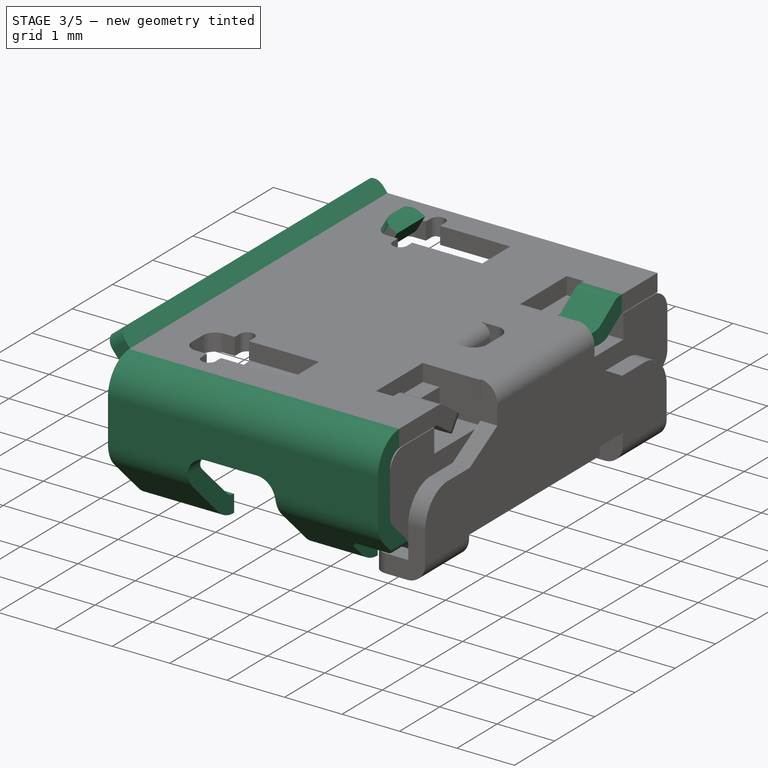
[diagram: stage 3 of 5 — iso view after this stage's code; geometry added in this stage tinted green]
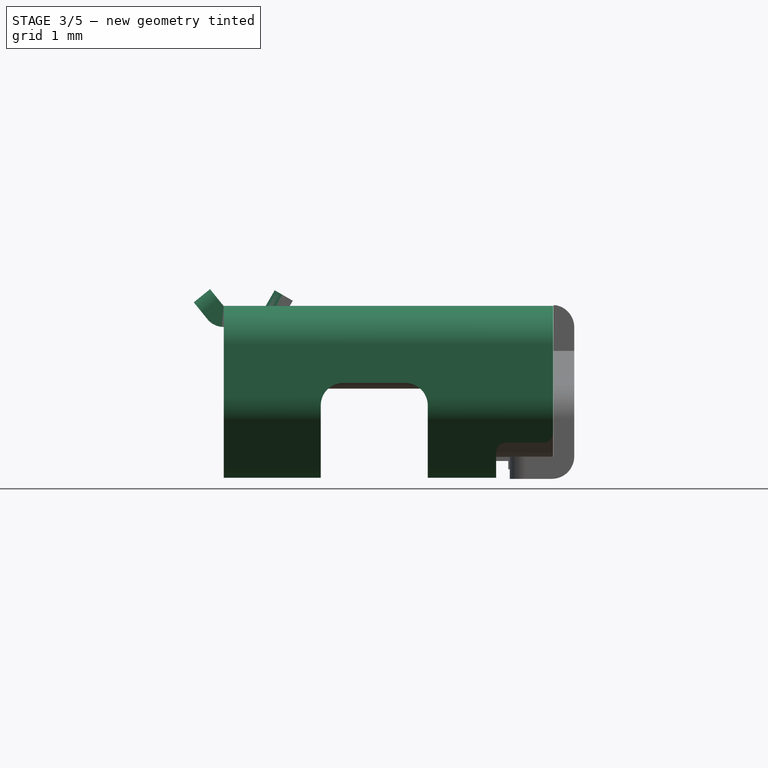
[diagram: stage 3 of 5 — front view after this stage's code; geometry added in this stage tinted green]
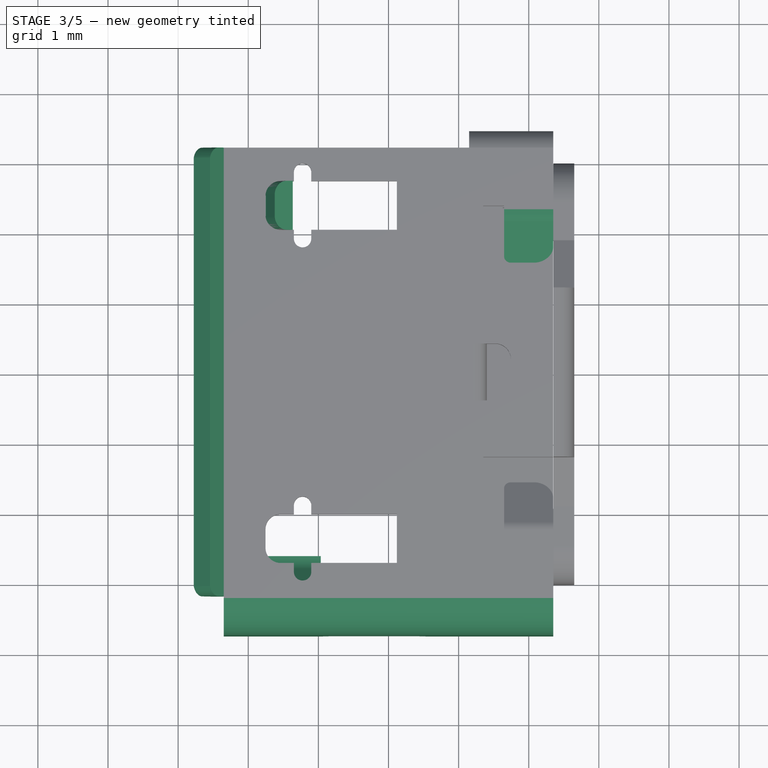
[diagram: stage 3 of 5 — top view after this stage's code; geometry added in this stage tinted green]
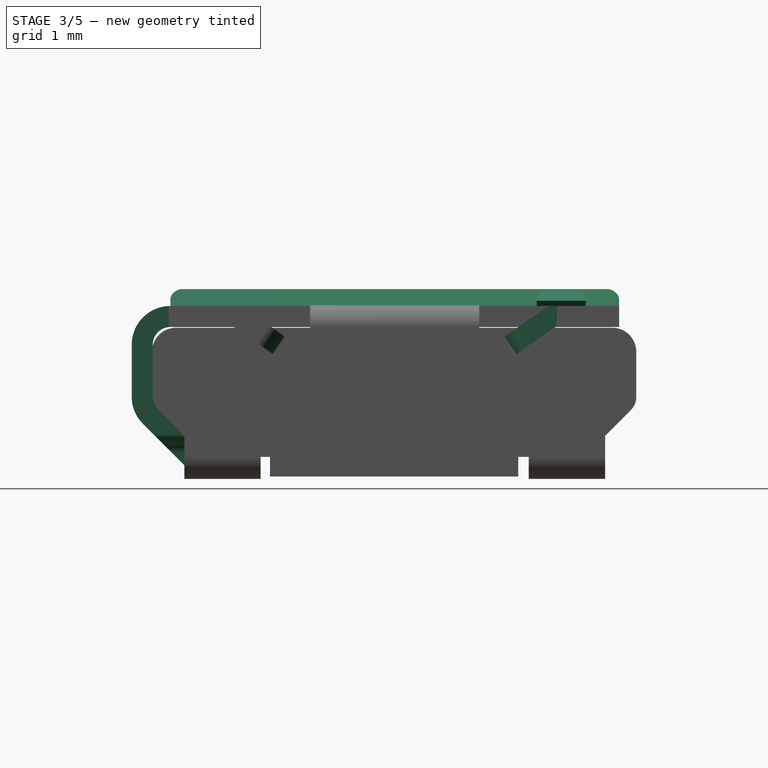
[diagram: stage 3 of 5 — right view after this stage's code; geometry added in this stage tinted green]
FEATURE [Sketcher::SketchObject] Sketch006
  FullyConstrained = false
  MapMode = 5
  Placement = pos=(0,0,0) rot=(0.57735,0.57735,0.57735;2.0944rad)
  sketch-geometry (18):
    g0: LineSegment StartX=-2.59 StartY=0.32465 StartZ=0 EndX=-2.59 EndY=0.02465 EndZ=0
    g1: LineSegment StartX=-2.77031 StartY=0.399338 StartZ=0 EndX=-3.38196 EndY=1.01099 EndZ=0
    g2: ArcOfCircle CenterX=-2.59 CenterY=0.57965 CenterZ=0 NormalX=0 NormalY=0 NormalZ=1 AngleXU=0 Radius=0.255 StartAngle=3.92699 EndAngle=4.71239
    g3: LineSegment StartX=-2.59 StartY=0.57965 StartZ=0 EndX=-2.59 EndY=0.32465 EndZ=0
    g4: LineSegment StartX=-2.59 StartY=0.57965 StartZ=0 EndX=-2.77031 EndY=0.399338 EndZ=0
    g5: ArcOfCircle CenterX=-2.59 CenterY=0.57965 CenterZ=0 NormalX=0 NormalY=0 NormalZ=1 AngleXU=0 Radius=0.555 StartAngle=3.92699 EndAngle=4.71239
    g6: LineSegment StartX=-3.4505 StartY=1.17645 StartZ=0 EndX=-3.2165 EndY=1.17645 EndZ=0
    g7: LineSegment StartX=-3.38196 StartY=1.01099 StartZ=0 EndX=-3.2165 EndY=1.17645 EndZ=0
    g8: ArcOfCircle CenterX=-3.2165 CenterY=1.17645 CenterZ=0 NormalX=0 NormalY=0 NormalZ=1 AngleXU=0 Radius=0.234 StartAngle=3.14159 EndAngle=3.92699
    g9: ArcOfCircle CenterX=-3.2165 CenterY=1.17645 CenterZ=0 NormalX=0 NormalY=0 NormalZ=1 AngleXU=0 Radius=0.534 StartAngle=3.14159 EndAngle=3.92699
    g10: LineSegment StartX=-3.59409 StartY=0.798853 StartZ=0 EndX=-2.98244 EndY=0.187206 EndZ=0
    g11: LineSegment StartX=-3.1975 StartY=2.17445 StartZ=0 EndX=-3.1975 EndY=1.92145 EndZ=0
    g12: LineSegment StartX=-3.4505 StartY=1.92145 StartZ=0 EndX=-3.1975 EndY=1.92145 EndZ=0
    g13: LineSegment StartX=-3.4505 StartY=1.17645 StartZ=0 EndX=-3.4505 EndY=1.92145 EndZ=0
    g14: ArcOfCircle CenterX=-3.1975 CenterY=1.92145 CenterZ=0 NormalX=0 NormalY=0 NormalZ=1 AngleXU=0 Radius=0.253 StartAngle=1.5708 EndAngle=3.14159
    g15: LineSegment StartX=-3.7505 StartY=1.92145 StartZ=0 EndX=-3.7505 EndY=1.17645 EndZ=0
    g16: ArcOfCircle CenterX=-3.1975 CenterY=1.92145 CenterZ=0 NormalX=0 NormalY=0 NormalZ=1 AngleXU=0 Radius=0.553 StartAngle=1.5708 EndAngle=3.14159
    g17: LineSegment StartX=-3.1975 StartY=2.47445 StartZ=0 EndX=-3.1975 EndY=2.17445 EndZ=0
  constraints (51):
    c: Vertical(g0)
    c: DistanceY(g0,g0) = 0.3
    c: DistanceY(g-1,g0) = 0.02465
    c: DistanceX(g0,g-1) = 2.59
    c: Angle(g-1,g1) = 2.35619
    c: Vertical(g3)
    c: Coincident(g3,g2)
    c: Coincident(g3,g2)
    c: Coincident(g2,g0)
    c: Coincident(g2,g1)
    c: Coincident(g4,g2)
    c: Coincident(g4,g1)
    c: Perpendicular(g1,g4)
    c: DistanceY(g3,g3) = 0.255
    c: Coincident(g5,g2)
    c: Coincident(g5,g0)
    c: PointOnObject(g5,g4)
    c: Horizontal(g6)
    c: Coincident(g7,g1)
    c: Coincident(g7,g6)
    c: Perpendicular(g7,g1)
    c: Coincident(g8,g6)
    c: Coincident(g8,g1)
    c: Coincident(g8,g6)
    c: DistanceX(g6,g6) = 0.234
    c: Distance(g1) = 0.865
    c: Coincident(g9,g6)
    c: PointOnObject(g9,g6)
    c: PointOnObject(g9,g7)
    c: Radius(g9) = 0.534
    c: Coincident(g10,g5)
    c: Coincident(g10,g9)
    c: Vertical(g11)
    c: Horizontal(g12)
    c: Coincident(g12,g11)
    c: Vertical(g13)
    c: Coincident(g13,g6)
    c: Coincident(g13,g12)
    c: Coincident(g14,g11)
    c: Coincident(g14,g12)
    c: Coincident(g14,g11)
    c: DistanceX(g12,g12) = 0.253
    c: DistanceY(g13,g13) = 0.745
    c: Vertical(g15)
    c: Coincident(g15,g9)
    c: PointOnObject(g15,g12)
    c: Coincident(g16,g11)
    c: Coincident(g16,g15)
    c: Vertical(g17)
    c: Coincident(g17,g11)
    c: Coincident(g17,g16)
FEATURE [PartDesign::Pad] Pad003  label="Part-3-src"
  AllowMultiFace = false
  Direction = (1,1,1)
  Length = 4.7
  Length2 = 100
  Midplane = true
  Placement = pos=(0,0,0) rot=(0.57735,0.57735,0.57735;2.0944rad)
  Profile = -> Sketch006
  Type = 0
FEATURE [Sketcher::SketchObject] Sketch007
  FullyConstrained = false
  MapMode = 5
  Placement = pos=(0,-3.7505,4e-16) rot=(0.57735,0.57735,-0.57735;2.0944rad)
  Support = -> [Pad003]
  sketch-geometry (20):
    g0: LineSegment StartX=-1.056 StartY=-0.966 StartZ=0 EndX=0 EndY=-0.966 EndZ=0
    g1: LineSegment StartX=0 StartY=-0.966 StartZ=0 EndX=0 EndY=0.56 EndZ=0
    g2: LineSegment StartX=0 StartY=0.56 StartZ=0 EndX=-1.056 EndY=0.56 EndZ=0
    g3: LineSegment StartX=-1.377 StartY=0.239 StartZ=0 EndX=-1.377 EndY=-0.645 EndZ=0
    g4: LineSegment StartX=-1.056 StartY=-0.645 StartZ=0 EndX=-1.056 EndY=-0.966 EndZ=0
    g5: LineSegment StartX=-1.056 StartY=-0.645 StartZ=0 EndX=-1.377 EndY=-0.645 EndZ=0
    g6: ArcOfCircle CenterX=-1.056 CenterY=-0.645 CenterZ=0 NormalX=0 NormalY=0 NormalZ=1 AngleXU=0 Radius=0.321 StartAngle=3.14159 EndAngle=4.71239
    g7: LineSegment StartX=-1.377 StartY=-0.203 StartZ=0 EndX=0 EndY=-0.203 EndZ=0
    g8: ArcOfCircle CenterX=-1.056 CenterY=0.239 CenterZ=0 NormalX=0 NormalY=0 NormalZ=1 AngleXU=0 Radius=0.321 StartAngle=1.5708 EndAngle=3.14159
    g9: LineSegment StartX=0 StartY=1.535 StartZ=0 EndX=-0.382 EndY=1.535 EndZ=0
    g10: LineSegment StartX=-0.527 StartY=2.216 StartZ=0 EndX=-0.527 EndY=1.68 EndZ=0
    g11: LineSegment StartX=-0.382 StartY=1.535 StartZ=0 EndX=-0.382 EndY=1.68 EndZ=0
    g12: LineSegment StartX=-0.382 StartY=1.68 StartZ=0 EndX=-0.527 EndY=1.68 EndZ=0
    g13: ArcOfCircle CenterX=-0.382 CenterY=1.68 CenterZ=0 NormalX=0 NormalY=0 NormalZ=1 AngleXU=0 Radius=0.145 StartAngle=3.14159 EndAngle=4.71239
    g14: LineSegment StartX=-0.527 StartY=2.216 StartZ=0 EndX=-0.656 EndY=2.216 EndZ=0
    g15: LineSegment StartX=-0.656 StartY=2.216 StartZ=0 EndX=-0.656 EndY=2.345 EndZ=0
    g16: ArcOfCircle CenterX=-0.656 CenterY=2.216 CenterZ=0 NormalX=0 NormalY=0 NormalZ=1 AngleXU=0 Radius=0.129 StartAngle=0 EndAngle=1.5708
    g17: LineSegment StartX=-0.656 StartY=2.345 StartZ=0 EndX=-0.656 EndY=2.545 EndZ=0
    g18: LineSegment StartX=-0.656 StartY=2.545 StartZ=0 EndX=0 EndY=2.545 EndZ=0
    g19: LineSegment StartX=0 StartY=2.545 StartZ=0 EndX=0 EndY=1.535 EndZ=0
  constraints (58):
    c: PointOnObject(g0,g-2)
    c: Horizontal(g0)
    c: Coincident(g0,g1)
    c: Vertical(g1)
    c: Coincident(g1,g2)
    c: Horizontal(g2)
    c: Equal(g0,g2)
    c: DistanceY(g1,g1) = 1.526
    c: Vertical(g3)
    c: Coincident(g4,g0)
    c: Vertical(g4)
    c: Coincident(g5,g4)
    c: Coincident(g5,g3)
    c: Horizontal(g5)
    c: Coincident(g6,g4)
    c: Coincident(g6,g0)
    c: Coincident(g6,g3)
    c: DistanceY(g-1,g1) = 0.56
    c: DistanceX(g0,g0) = 1.056
    c: Radius(g6) = 0.321
    c: Horizontal(g7)
    c: PointOnObject(g7,g1)
    c: PointOnObject(g7,g3)
    c: Symmetric(g3,g3,g7)
    c: Coincident(g8,g3)
    c: Coincident(g8,g2)
    c: Symmetric(g4,g8,g7)
    c: PointOnObject(g9,g-2)
    c: Horizontal(g9)
    c: Vertical(g10)
    c: DistanceY(g-1,g9) = 1.535
    c: Vertical(g11)
    c: Coincident(g11,g12)
    c: Horizontal(g12)
    c: Coincident(g11,g9)
    c: Coincident(g10,g12)
    c: Coincident(g13,g11)
    c: Coincident(g13,g9)
    c: Coincident(g13,g10)
    c: DistanceX(g9,g9) = 0.382
    c: Radius(g13) = 0.145
    c: Coincident(g10,g14)
    c: Horizontal(g14)
    c: Coincident(g14,g15)
    c: Vertical(g15)
    c: Coincident(g16,g14)
    c: Coincident(g16,g10)
    c: Coincident(g16,g15)
    c: DistanceY(g10,g10) = 0.536
    c: Coincident(g15,g17)
    c: Vertical(g17)
    c: Coincident(g17,g18)
    c: PointOnObject(g18,g-2)
    c: Horizontal(g18)
    c: Coincident(g18,g19)
    c: Coincident(g19,g9)
    c: DistanceX(g18,g18) = 0.656
    c: DistanceY(g17,g17) = 0.2
FEATURE [PartDesign::Pocket] Pocket002  label="Part-3-pocket-1"
  AllowMultiFace = false
  Length = 5
  Length2 = 100
  Placement = pos=(0,0,0) rot=(0.57735,0.57735,0.57735;2.0944rad)
  Profile = -> Sketch007
  Type = 1
FEATURE [Sketcher::SketchObject] Sketch012
  FullyConstrained = false
  MapMode = 5
  Placement = pos=(-1.7526,-2.725,2.473) rot=(1,0,0;1.5708rad)
  sketch-geometry (6):
    g0: LineSegment StartX=0 StartY=-0.298 StartZ=0 EndX=0 EndY=0 EndZ=0
    g1: LineSegment StartX=0 StartY=0 StartZ=0 EndX=0.13 EndY=0.225167 EndZ=0
    g2: LineSegment StartX=0.13 StartY=0.225167 StartZ=0 EndX=0.388076 EndY=0.0761666 EndZ=0
    g3: LineSegment StartX=0.388076 StartY=0.0761666 StartZ=0 EndX=0.258076 EndY=-0.149 EndZ=0
    g4: LineSegment StartX=0 StartY=0 StartZ=0 EndX=0.258076 EndY=-0.149 EndZ=0
    g5: ArcOfCircle CenterX=0 CenterY=0 CenterZ=0 NormalX=0 NormalY=0 NormalZ=1 AngleXU=0 Radius=0.298 StartAngle=4.71239 EndAngle=5.75959
  constraints (16):
    c: Vertical(g0)
    c: Coincident(g0,g1)
    c: Coincident(g1,g2)
    c: Coincident(g2,g3)
    c: Coincident(g4,g0)
    c: Coincident(g4,g3)
    c: Angle(g0,g1) = 2.61799
    c: Perpendicular(g2,g1)
    c: Perpendicular(g2,g3)
    c: Distance(g2) = 0.298
    c: Distance(g3) = 0.26
    c: Perpendicular(g3,g4)
    c: Coincident(g5,g0)
    c: Coincident(g5,g3)
    c: Coincident(g5,g0)
    c: Coincident(g0,g-1)
FEATURE [PartDesign::Pad] Pad006
  AllowMultiFace = false
  Direction = (1,1,1)
  Length = 0.7
  Length2 = 100
  Placement = pos=(-1.7526,-2.725,2.473) rot=(1,0,0;1.5708rad)
  Profile = -> Sketch012
  Reversed = true
  Type = 0
FEATURE [Sketcher::SketchObject] Sketch013
  FullyConstrained = false
  MapMode = 5
  Placement = pos=(-1.6226,-2.725,2.69817) rot=(0.258819,0,0.965926;3.14159rad)
  Support = -> [Pad006]
  sketch-geometry (11):
    g0: LineSegment StartX=-0.202 StartY=0 StartZ=0 EndX=-0.202 EndY=-0.202 EndZ=0
    g1: LineSegment StartX=-0.202 StartY=-0.202 StartZ=0 EndX=0 EndY=-0.202 EndZ=0
    g2: ArcOfCircle CenterX=-0.202 CenterY=-0.202 CenterZ=0 NormalX=0 NormalY=0 NormalZ=1 AngleXU=0 Radius=0.202 StartAngle=0 EndAngle=1.5708
    g3: LineSegment StartX=-0.202 StartY=0 StartZ=0 EndX=-0.202 EndY=0.094 EndZ=0
    g4: LineSegment StartX=-0.202 StartY=0.094 StartZ=0 EndX=0.034 EndY=0.094 EndZ=0
    g5: LineSegment StartX=0.034 StartY=0.094 StartZ=0 EndX=0.034 EndY=-0.794 EndZ=0
    g6: LineSegment StartX=0.034 StartY=-0.794 StartZ=0 EndX=-0.202 EndY=-0.794 EndZ=0
    g7: LineSegment StartX=-0.202 StartY=-0.794 StartZ=0 EndX=-0.202 EndY=-0.7 EndZ=0
    g8: LineSegment StartX=0 StartY=-0.35 StartZ=0 EndX=-0.202 EndY=-0.35 EndZ=0
    g9: ArcOfCircle CenterX=-0.202 CenterY=-0.498 CenterZ=0 NormalX=0 NormalY=0 NormalZ=1 AngleXU=0 Radius=0.202 StartAngle=4.71239 EndAngle=6.28319
    g10: LineSegment StartX=0 StartY=-0.202 StartZ=0 EndX=0 EndY=-0.498 EndZ=0
  constraints (32):
    c: Vertical(g0)
    c: Coincident(g0,g1)
    c: Horizontal(g1)
    c: Coincident(g2,g0)
    c: Coincident(g2,g0)
    c: Coincident(g2,g1)
    c: PointOnObject(g0,g-1)
    c: Radius(g2) = 0.202
    c: PointOnObject(g1,g-2)
    c: Coincident(g0,g3)
    c: Vertical(g3)
    c: Coincident(g3,g4)
    c: Horizontal(g4)
    c: Coincident(g4,g5)
    c: Vertical(g5)
    c: Coincident(g5,g6)
    c: Horizontal(g6)
    c: Coincident(g6,g7)
    c: Vertical(g7)
    c: PointOnObject(g8,g-2)
    c: PointOnObject(g8,g0)
    c: Symmetric(g4,g5,g8)
    c: DistanceX(g4,g4) = 0.236
    c: DistanceY(g3,g3) = 0.094
    c: Symmetric(g7,g0,g8)
    c: DistanceY(g6,g0) = 0.794
    c: Coincident(g9,g7)
    c: Symmetric(g9,g0,g8)
    c: Symmetric(g9,g1,g8)
    c: Vertical(g10)
    c: Coincident(g10,g1)
    c: Coincident(g10,g9)
FEATURE [PartDesign::Pocket] Pocket005
  AllowMultiFace = false
  Length = 5
  Length2 = 100
  Placement = pos=(-1.7526,-2.725,2.473) rot=(1,0,0;1.5708rad)
  Profile = -> Sketch013
  Type = 1
FEATURE [Part::FeaturePython] Clone007  label="Part-7"  # Draft clone (typed FeaturePython)
  Objects = -> [Pocket005]
  Placement = pos=(-1.7526,-2.725,2.473) rot=(1,0,0;1.5708rad)
  Scale = (1,1,1)
FEATURE [Part::Mirroring] Part__Mirroring003  label="Part-7 (Mirror #4)"
  Base = (0,0,0)
  Normal = (0,1,0)
  Source = -> Clone007
FEATURE [Sketcher::SketchObject] Sketch014
  FullyConstrained = false
  MapMode = 5
  Placement = pos=(-2.35,-3.2,2.473) rot=(1,0,0;1.5708rad)
  sketch-geometry (6):
    g0: LineSegment StartX=-0.426679 StartY=0.0533778 StartZ=0 EndX=-0.195089 EndY=0.240915 EndZ=0
    g1: LineSegment StartX=-0.195089 StartY=0.240915 StartZ=0 EndX=0 EndY=0 EndZ=0
    g2: LineSegment StartX=0 StartY=0 StartZ=0 EndX=0 EndY=-0.298 EndZ=0
    g3: LineSegment StartX=-0.426679 StartY=0.0533778 StartZ=0 EndX=-0.231589 EndY=-0.187537 EndZ=0
    g4: LineSegment StartX=0 StartY=0 StartZ=0 EndX=-0.231589 EndY=-0.187537 EndZ=0
    g5: ArcOfCircle CenterX=0 CenterY=0 CenterZ=0 NormalX=0 NormalY=0 NormalZ=1 AngleXU=0 Radius=0.298 StartAngle=3.82227 EndAngle=4.71239
  constraints (16):
    c: Coincident(g0,g1)
    c: Coincident(g1,g2)
    c: Vertical(g2)
    c: Coincident(g3,g0)
    c: Angle(g1,g2) = 2.46091
    c: Perpendicular(g1,g0)
    c: Perpendicular(g0,g3)
    c: Coincident(g4,g1)
    c: Coincident(g4,g3)
    c: Parallel(g4,g0)
    c: Coincident(g5,g1)
    c: Coincident(g5,g3)
    c: Coincident(g5,g2)
    c: Distance(g0) = 0.298
    c: Distance(g1) = 0.31
    c: Coincident(g1,g-1)
FEATURE [PartDesign::Pad] Pad007
  AllowMultiFace = false
  Direction = (1,1,1)
  Length = 6.4
  Length2 = 100
  Placement = pos=(-2.35,-3.2,2.473) rot=(1,0,0;1.5708rad)
  Profile = -> Sketch014
  Reversed = true
  Type = 0
FEATURE [Sketcher::SketchObject] Sketch015
  FullyConstrained = false
  MapMode = 5
  Placement = pos=(-2.35,-3.2,2.473) rot=(0.430511,0,0.902585;3.14159rad)
  Support = -> [Pad007]
  sketch-geometry (9):
    g0: LineSegment StartX=0.119 StartY=0 StartZ=0 EndX=0.119 EndY=-0.199 EndZ=0
    g1: LineSegment StartX=0.119 StartY=-0.199 StartZ=0 EndX=0.318 EndY=-0.199 EndZ=0
    g2: ArcOfCircle CenterX=0.119 CenterY=-0.199 CenterZ=0 NormalX=0 NormalY=0 NormalZ=1 AngleXU=0 Radius=0.199 StartAngle=0 EndAngle=1.5708
    g3: LineSegment StartX=0.119 StartY=0 StartZ=0 EndX=0.499 EndY=0 EndZ=0
    g4: LineSegment StartX=0.499 StartY=0 StartZ=0 EndX=0.499 EndY=-6.4 EndZ=0
    g5: LineSegment StartX=0.318 StartY=-0.199 StartZ=0 EndX=0.318 EndY=-6.201 EndZ=0
    g6: LineSegment StartX=0.318 StartY=-3.2 StartZ=0 EndX=0.499 EndY=-3.2 EndZ=0
    g7: ArcOfCircle CenterX=0.119 CenterY=-6.201 CenterZ=0 NormalX=0 NormalY=0 NormalZ=1 AngleXU=0 Radius=0.199 StartAngle=4.71239 EndAngle=6.28319
    g8: LineSegment StartX=0.119 StartY=-6.4 StartZ=0 EndX=0.499 EndY=-6.4 EndZ=0
  constraints (27):
    c: Vertical(g0)
    c: Coincident(g0,g1)
    c: Horizontal(g1)
    c: Coincident(g2,g0)
    c: Coincident(g2,g1)
    c: DistanceX(g-1,g0) = 0.119
    c: Radius(g2) = 0.199
    c: PointOnObject(g0,g-1)
    c: Coincident(g2,g0)
    c: Coincident(g3,g0)
    c: Horizontal(g3)
    c: DistanceX(g3,g3) = 0.38
    c: Coincident(g4,g3)
    c: Vertical(g4)
    c: Coincident(g5,g1)
    c: Vertical(g5)
    c: PointOnObject(g6,g4)
    c: PointOnObject(g6,g5)
    c: Symmetric(g3,g4,g6)
    c: Symmetric(g1,g5,g6)
    c: DistanceY(g4,g4) = 6.4
    c: Coincident(g7,g5)
    c: Symmetric(g7,g0,g6)
    c: Symmetric(g7,g0,g6)
    c: Horizontal(g8)
    c: Coincident(g8,g7)
    c: Coincident(g8,g4)
FEATURE [PartDesign::Pocket] Pocket006
  AllowMultiFace = false
  Length = 5
  Length2 = 100
  Placement = pos=(-2.35,-3.2,2.473) rot=(1,0,0;1.5708rad)
  Profile = -> Sketch015
  Type = 1
FEATURE [Part::FeaturePython] Clone008  label="Part-8"  # Draft clone (typed FeaturePython)
  Objects = -> [Pocket006]
  Placement = pos=(-2.35,-3.2,2.473) rot=(1,0,0;1.5708rad)
  Scale = (1,1,1)
FEATURE [Sketcher::SketchObject] Sketch023
  FullyConstrained = false
  MapMode = 5
  Placement = pos=(1.65,-2.13641,2.43667) rot=(-0.288366,-0.288366,-0.913066;1.66162rad)
  Support = -> [Pad011]
  sketch-geometry (10):
    g0: LineSegment StartX=-0.698 StartY=0.103 StartZ=0 EndX=-0.595 EndY=0.103 EndZ=0
    g1: LineSegment StartX=-0.595 StartY=0.103 StartZ=0 EndX=-0.595 EndY=0 EndZ=0
    g2: ArcOfCircle CenterX=-0.595 CenterY=0.103 CenterZ=0 NormalX=0 NormalY=0 NormalZ=1 AngleXU=0 Radius=0.103 StartAngle=3.14159 EndAngle=4.71239
    g3: LineSegment StartX=-0.595 StartY=0 StartZ=0 EndX=-0.748 EndY=0 EndZ=0
    g4: LineSegment StartX=-0.698 StartY=0.413 StartZ=0 EndX=-0.41 EndY=0.413 EndZ=0
    g5: LineSegment StartX=-0.41 StartY=0.413 StartZ=0 EndX=-0.41 EndY=0.701 EndZ=0
    g6: ArcOfCircle CenterX=-0.41 CenterY=0.413 CenterZ=0 NormalX=0 NormalY=0 NormalZ=1 AngleXU=0 Radius=0.288 StartAngle=1.5708 EndAngle=3.14159
    g7: LineSegment StartX=-0.698 StartY=0.413 StartZ=0 EndX=-0.698 EndY=0.103 EndZ=0
    g8: LineSegment StartX=-0.41 StartY=0.701 StartZ=0 EndX=-0.748 EndY=0.701 EndZ=0
    g9: LineSegment StartX=-0.748 StartY=0.701 StartZ=0 EndX=-0.748 EndY=0 EndZ=0
  constraints (28):
    c: Horizontal(g0)
    c: Vertical(g1)
    c: Coincident(g1,g0)
    c: Coincident(g2,g0)
    c: Coincident(g2,g1)
    c: Coincident(g2,g0)
    c: PointOnObject(g1,g-1)
    c: DistanceX(g1,g-1) = 0.595
    c: Radius(g2) = 0.103
    c: Horizontal(g3)
    c: Coincident(g3,g1)
    c: Horizontal(g4)
    c: Coincident(g5,g4)
    c: Vertical(g5)
    c: Coincident(g6,g4)
    c: Coincident(g6,g4)
    c: Coincident(g6,g5)
    c: Vertical(g7)
    c: Coincident(g7,g0)
    c: Coincident(g7,g4)
    c: Radius(g6) = 0.288
    c: DistanceY(g7,g7) = 0.31
    c: Coincident(g8,g5)
    c: Horizontal(g8)
    c: Coincident(g9,g8)
    c: Coincident(g9,g3)
    c: Vertical(g9)
    c: DistanceX(g8,g4) = 0.05
FEATURE [PartDesign::Pocket] Pocket010
  AllowMultiFace = false
  Length = 5
  Length2 = 100
  Placement = pos=(1.65,-2.32,2.175) rot=(0.57735,0.57735,0.57735;2.0944rad)
  Profile = -> Sketch023
  Type = 1
FEATURE [Part::Mirroring] Part__Mirroring004  label="Pocket010 (Mirror #5)"
  Base = (0,0,0)
  Normal = (0,1,0)
  Source = -> Pocket010
FEATURE [Part::FeaturePython] Clone011  label="Part-9"  # Draft clone (typed FeaturePython)
  Objects = -> [Pocket010]
  Placement = pos=(1.65,-2.32,2.175) rot=(0.57735,0.57735,0.57735;2.0944rad)
  Scale = (1,1,1)
FEATURE [Part::FeaturePython] Clone012  label="Part-9-mirror"  # Draft clone (typed FeaturePython)
  Objects = -> [Part__Mirroring004]
  Scale = (1,1,1)
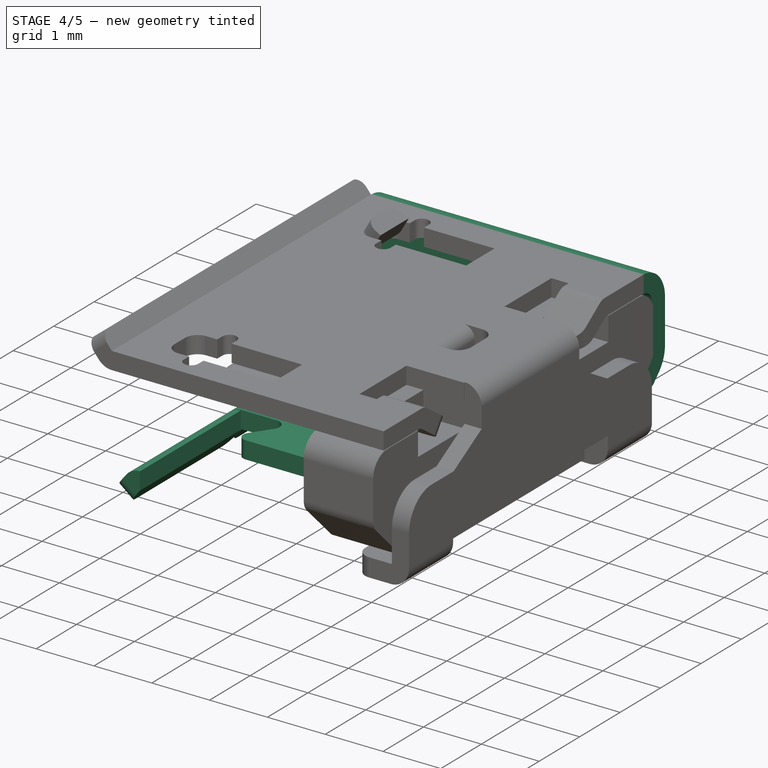
[diagram: stage 4 of 5 — iso view after this stage's code; geometry added in this stage tinted green]
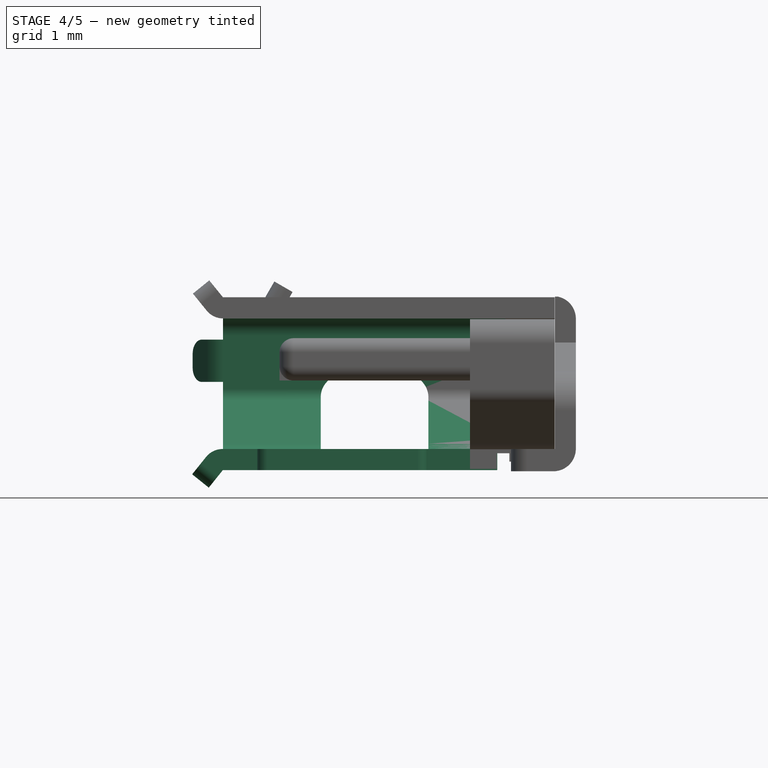
[diagram: stage 4 of 5 — front view after this stage's code; geometry added in this stage tinted green]
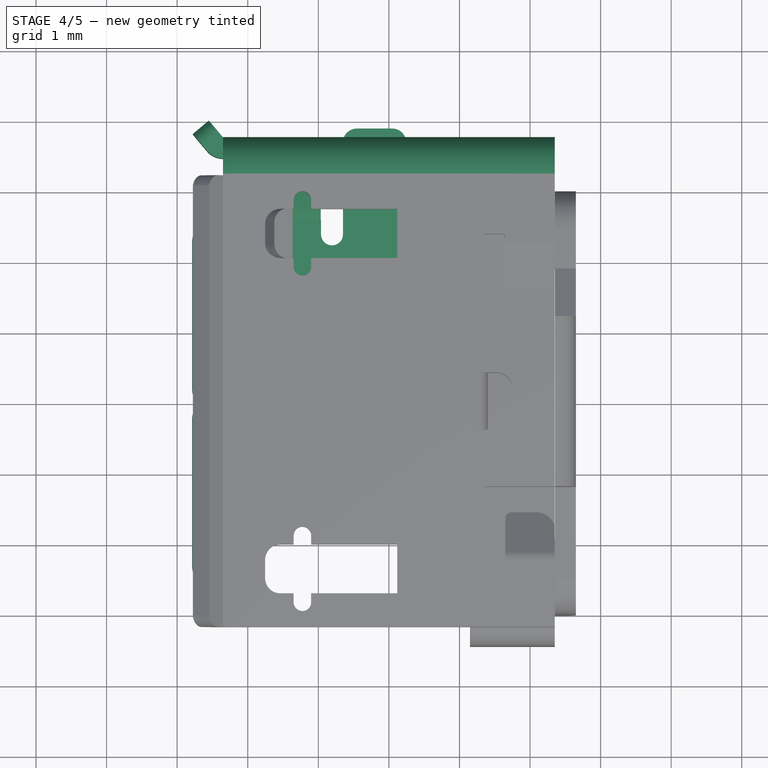
[diagram: stage 4 of 5 — top view after this stage's code; geometry added in this stage tinted green]
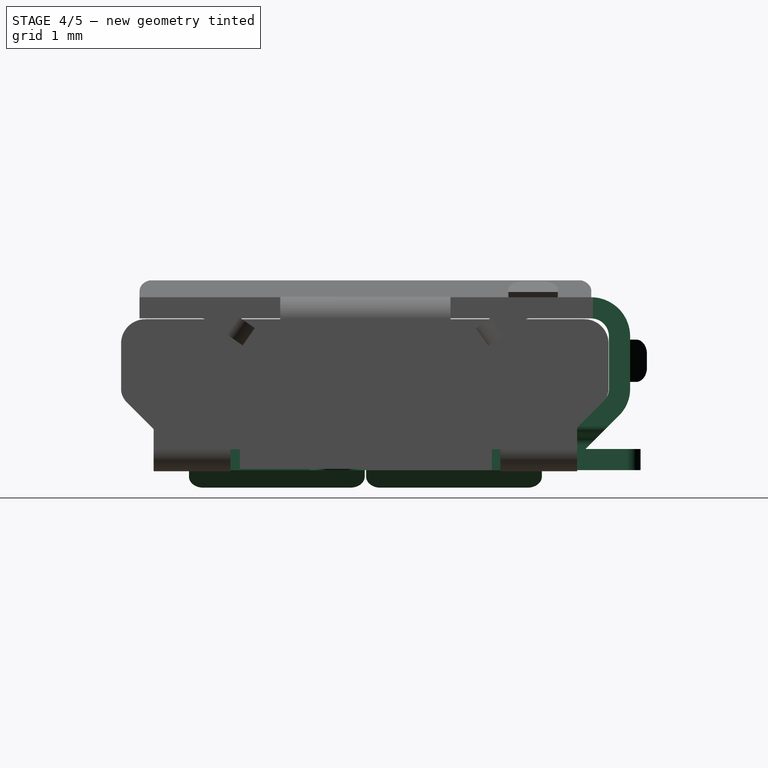
[diagram: stage 4 of 5 — right view after this stage's code; geometry added in this stage tinted green]
FEATURE [Sketcher::SketchObject] Sketch002  label="bottom-right-part-sketch"
  FullyConstrained = false
  MapMode = 5
  Placement = pos=(-1.09035e-09,-0.000203402,0.0249995) rot=(0,0,1;0rad)
  sketch-geometry (38):
    g0: LineSegment StartX=-2.355 StartY=0 StartZ=0 EndX=1.13 EndY=0 EndZ=0
    g1: LineSegment StartX=-2.355 StartY=0.01 StartZ=0 EndX=-2.355 EndY=0 EndZ=0
    g2: LineSegment StartX=-2.355 StartY=0.01 StartZ=0 EndX=-1.746 EndY=0.01 EndZ=0
    g3: LineSegment StartX=-1.746 StartY=0.01 StartZ=0 EndX=-1.746 EndY=-0.15 EndZ=0
    g4: ArcOfCircle CenterX=-1.746 CenterY=-0.15 CenterZ=0 NormalX=0 NormalY=0 NormalZ=1 AngleXU=0 Radius=0.16 StartAngle=5.68244 EndAngle=7.85398
    g5: LineSegment StartX=-1.746 StartY=-0.15 StartZ=0 EndX=-1.61401 EndY=-0.240441 EndZ=0
    g6: LineSegment StartX=-1.61401 StartY=-0.240441 StartZ=0 EndX=-1.84012 EndY=-0.570407 EndZ=0
    g7: LineSegment StartX=-1.84012 StartY=-0.570407 StartZ=0 EndX=-1.72463 EndY=-0.649543 EndZ=0
    g8: ArcOfCircle CenterX=-1.72463 CenterY=-0.649543 CenterZ=0 NormalX=0 NormalY=0 NormalZ=1 AngleXU=0 Radius=0.14 StartAngle=2.54085 EndAngle=4.71239
    g9: LineSegment StartX=-1.72463 StartY=-0.649543 StartZ=0 EndX=-1.72463 EndY=-0.789543 EndZ=0
    g10: LineSegment StartX=-1.72463 StartY=-0.789543 StartZ=0 EndX=0.404373 EndY=-0.789543 EndZ=0
    g11: LineSegment StartX=-0.660127 StartY=0 StartZ=0 EndX=-0.660127 EndY=-0.789543 EndZ=0
    g12: ArcOfCircle CenterX=0.404373 CenterY=-0.649543 CenterZ=0 NormalX=0 NormalY=0 NormalZ=1 AngleXU=0 Radius=0.14 StartAngle=4.71239 EndAngle=6.88393
    g13: LineSegment StartX=0.519861 StartY=-0.570407 StartZ=0 EndX=0.293759 EndY=-0.240441 EndZ=0
    g14: ArcOfCircle CenterX=0.425746 CenterY=-0.15 CenterZ=0 NormalX=0 NormalY=0 NormalZ=1 AngleXU=0 Radius=0.16 StartAngle=1.5708 EndAngle=3.74233
    g15: LineSegment StartX=0.425746 StartY=0.01 StartZ=0 EndX=1.13 EndY=0.01 EndZ=0
    g16: LineSegment StartX=1.13 StartY=0.01 StartZ=0 EndX=1.13 EndY=0 EndZ=0
    g17: LineSegment StartX=-2.355 StartY=2.499 StartZ=0 EndX=-2.355 EndY=0.01 EndZ=0
    g18: LineSegment StartX=-2.355 StartY=2.499 StartZ=0 EndX=-2.35 EndY=2.499 EndZ=0
    g19: LineSegment StartX=-2.35 StartY=2.499 StartZ=0 EndX=-2.35 EndY=2.59665 EndZ=0
    g20: LineSegment StartX=-2.35 StartY=2.59665 StartZ=0 EndX=-0.961 EndY=2.59665 EndZ=0
    g21: LineSegment StartX=-0.961 StartY=2.59665 StartZ=0 EndX=-0.961 EndY=2.39965 EndZ=0
    g22: ArcOfCircle CenterX=-0.806 CenterY=2.39965 CenterZ=0 NormalX=0 NormalY=0 NormalZ=1 AngleXU=0 Radius=0.155 StartAngle=3.14159 EndAngle=6.28319
    g23: LineSegment StartX=-0.961 StartY=2.39965 StartZ=0 EndX=-0.651 EndY=2.39965 EndZ=0
    g24: LineSegment StartX=-0.651 StartY=2.39965 StartZ=0 EndX=-0.651 EndY=3.70365 EndZ=0
    g25: LineSegment StartX=-0.651 StartY=3.70365 StartZ=0 EndX=-0.455 EndY=3.70365 EndZ=0
    g26: LineSegment StartX=-0.455 StartY=3.70365 StartZ=0 EndX=-0.455 EndY=3.89965 EndZ=0
    g27: ArcOfCircle CenterX=-0.455 CenterY=3.70365 CenterZ=0 NormalX=0 NormalY=0 NormalZ=1 AngleXU=0 Radius=0.196 StartAngle=1.5708 EndAngle=3.14159
    g28: LineSegment StartX=-0.455 StartY=3.89965 StartZ=0 EndX=0.049 EndY=3.89965 EndZ=0
    g29: LineSegment StartX=-0.203 StartY=3.89965 StartZ=0 EndX=-0.203 EndY=0 EndZ=0
    g30: ArcOfCircle CenterX=0.049 CenterY=3.70365 CenterZ=0 NormalX=0 NormalY=0 NormalZ=1 AngleXU=0 Radius=0.196 StartAngle=0 EndAngle=1.5708
    g31: LineSegment StartX=0.245 StartY=3.70365 StartZ=0 EndX=0.245 EndY=2.39965 EndZ=0
    g32: ArcOfCircle CenterX=0.4 CenterY=2.39965 CenterZ=0 NormalX=0 NormalY=0 NormalZ=1 AngleXU=0 Radius=0.155 StartAngle=3.14159 EndAngle=6.28318
    g33: LineSegment StartX=0.555 StartY=2.59665 StartZ=0 EndX=0.555 EndY=2.39965 EndZ=0
    g34: LineSegment StartX=0.555 StartY=2.59665 StartZ=0 EndX=1.528 EndY=2.59665 EndZ=0
    g35: LineSegment StartX=1.528 StartY=2.59665 StartZ=0 EndX=1.528 EndY=1.78965 EndZ=0
    g36: LineSegment StartX=1.528 StartY=1.78965 StartZ=0 EndX=1.13 EndY=1.78965 EndZ=0
    g37: LineSegment StartX=1.13 StartY=1.78965 StartZ=0 EndX=1.13 EndY=0.01 EndZ=0
  constraints (108):
    c: Horizontal(g0)
    c: DistanceX(g0,g0) = 3.485
    c: DistanceX(g-1,g0) = 1.13
    c: PointOnObject(g0,g-1)
    c: Vertical(g1)
    c: Coincident(g1,g0)
    c: DistanceY(g1,g1) = 0.01
    c: Coincident(g2,g1)
    c: Horizontal(g2)
    c: DistanceX(g2,g2) = 0.609
    c: Vertical(g3)
    c: Coincident(g3,g2)
    c: Coincident(g4,g3)
    c: Coincident(g4,g2)
    c: Coincident(g5,g3)
    c: Coincident(g5,g4)
    c: Angle(g5,g3) = 2.17154
    c: Radius(g4) = 0.16
    c: Coincident(g6,g4)
    c: Perpendicular(g5,g6)
    c: Distance(g6) = 0.4
    c: Coincident(g7,g6)
    c: Perpendicular(g6,g7)
    c: Coincident(g8,g7)
    c: Coincident(g8,g6)
    c: Coincident(g9,g7)
    c: Vertical(g9)
    c: Coincident(g8,g9)
    c: Radius(g8) = 0.14
    c: Coincident(g10,g8)
    c: Horizontal(g10)
    c: DistanceX(g10,g10) = 2.129
    c: PointOnObject(g11,g0)
    c: PointOnObject(g11,g10)
    c: Symmetric(g8,g10,g11)
    c: Symmetric(g12,g7,g11)
    c: Symmetric(g12,g6,g11)
    c: Coincident(g13,g12)
    c: Symmetric(g13,g4,g11)
    c: Coincident(g14,g13)
    c: Symmetric(g14,g3,g11)
    c: Symmetric(g14,g2,g11)
    c: Coincident(g12,g10)
    c: Horizontal(g15)
    c: Coincident(g15,g14)
    c: Vertical(g16)
    c: Coincident(g16,g0)
    c: Coincident(g16,g15)
    c: Vertical(g17)
    c: Coincident(g1,g17)
    c: DistanceY(g17,g17) = 2.489
    c: Coincident(g17,g18)
    c: Coincident(g18,g19)
    c: Vertical(g19)
    c: Coincident(g19,g20)
    c: Horizontal(g20)
    c: Horizontal(g18)
    c: DistanceX(g18,g18) = 0.005
    c: DistanceY(g19,g19) = 0.09765
    c: DistanceX(g20,g20) = 1.389
    c: Vertical(g21)
    c: Coincident(g21,g20)
    c: DistanceY(g21,g21) = 0.197
    c: Coincident(g22,g21)
    c: Horizontal(g23)
    c: Coincident(g23,g21)
    c: PointOnObject(g22,g23)
    c: Coincident(g22,g23)
    c: Radius(g22) = 0.155
    c: Vertical(g24)
    c: Coincident(g24,g22)
    c: DistanceY(g24,g24) = 1.304
    c: Horizontal(g25)
    c: Vertical(g26)
    c: Coincident(g26,g25)
    c: Coincident(g25,g24)
    c: Coincident(g27,g25)
    c: Coincident(g27,g24)
    c: Coincident(g27,g26)
    c: Radius(g27) = 0.196
    c: Horizontal(g28)
    c: Coincident(g28,g26)
    c: DistanceX(g28,g28) = 0.504
    c: PointOnObject(g29,g28)
    c: PointOnObject(g29,g0)
    c: Symmetric(g26,g28,g29)
    c: Coincident(g30,g28)
    c: Symmetric(g30,g25,g29)
    c: Symmetric(g30,g24,g29)
    c: Vertical(g31)
    c: Coincident(g31,g30)
    c: Symmetric(g22,g31,g29)
    c: Coincident(g32,g31)
    c: Symmetric(g32,g22,g29)
    c: Vertical(g33)
    c: Coincident(g33,g32)
    c: Symmetric(g33,g20,g29)
    c: Coincident(g34,g33)
    c: Horizontal(g34)
    c: DistanceX(g34,g34) = 0.973
    c: Vertical(g35)
    c: DistanceY(g35,g35) = 0.807
    c: Coincident(g35,g34)
    c: Coincident(g35,g36)
    c: Horizontal(g36)
    c: Coincident(g36,g37)
    c: Vertical(g37)
    c: Coincident(g37,g15)
FEATURE [PartDesign::Pad] Pad001  label="part-2-src"
  AllowMultiFace = false
  Direction = (1,1,1)
  Length = 0.3
  Length2 = 100
  Placement = pos=(-1.09035e-09,-0.000203402,0.0249995) rot=(0,0,1;0rad)
  Profile = -> Sketch002
  Type = 0
FEATURE [Sketcher::SketchObject] Sketch004
  FullyConstrained = false
  MapMode = 5
  Placement = pos=(-2.35481,-0.01,0.0229994) rot=(1,0,0;1.5708rad)
  sketch-geometry (6):
    g0: LineSegment StartX=0 StartY=0 StartZ=0 EndX=-0.197166 EndY=-0.245664 EndZ=0
    g1: LineSegment StartX=-0.197166 StartY=-0.245664 StartZ=0 EndX=-0.432691 EndY=-0.0566347 EndZ=0
    g2: LineSegment StartX=-0.432691 StartY=-0.0566347 StartZ=0 EndX=-0.235525 EndY=0.189029 EndZ=0
    g3: LineSegment StartX=0 StartY=0.302 StartZ=0 EndX=0 EndY=0 EndZ=0
    g4: LineSegment StartX=-0.235525 StartY=0.189029 StartZ=0 EndX=0 EndY=0 EndZ=0
    g5: ArcOfCircle CenterX=0 CenterY=0 CenterZ=0 NormalX=0 NormalY=0 NormalZ=1 AngleXU=0 Radius=0.302 StartAngle=1.5708 EndAngle=2.46528
  constraints (16):
    c: Coincident(g0,g1)
    c: Coincident(g1,g2)
    c: Vertical(g3)
    c: Coincident(g0,g3)
    c: Angle(g0,g-1) = 2.24711
    c: Perpendicular(g0,g1)
    c: Perpendicular(g1,g2)
    c: Coincident(g4,g2)
    c: Coincident(g4,g0)
    c: Perpendicular(g2,g4)
    c: Coincident(g5,g0)
    c: Coincident(g5,g2)
    c: Coincident(g5,g3)
    c: DistanceY(g3,g3) = 0.302
    c: Distance(g2) = 0.315
    c: Coincident(g0,g-1)
FEATURE [PartDesign::Pad] Pad002
  AllowMultiFace = false
  Direction = (1,1,1)
  Length = 2.49
  Length2 = 100
  Placement = pos=(-2.35481,-0.01,0.0229994) rot=(1,0,0;1.5708rad)
  Profile = -> Sketch004
  Type = 0
FEATURE [Part::Fillet] Fillet
  Base = -> Pad002
  Edges = 2 edges r=0.2: [Edge6,Edge7]
FEATURE [Part::Mirroring] Part__Mirroring  label="Fillet (Mirror #1)"
  Base = (0,0,0)
  Normal = (0,1,0)
  Source = -> Fillet
FEATURE [Part::FeaturePython] Clone002  label="Part-4"  # Draft clone (typed FeaturePython)
  Objects = -> [Part__Mirroring]
  Scale = (1,1,1)
FEATURE [Part::FeaturePython] Clone003  label="Part-3"  # Draft clone (typed FeaturePython)
  Objects = -> [Fillet]
  Scale = (1,1,1)
FEATURE [Part::FeaturePython] Clone004  label="Part-5"  # Draft clone (typed FeaturePython)
  Objects = -> [Pocket002]
  Placement = pos=(0,0,0) rot=(0.57735,0.57735,0.57735;2.0944rad)
  Scale = (1,1,1)
FEATURE [Sketcher::SketchObject] Sketch008
  FullyConstrained = false
  MapMode = 5
  Placement = pos=(-2.35,-3.45,1.275) rot=(0,0,1;0rad)
  sketch-geometry (6):
    g0: LineSegment StartX=0 StartY=0 StartZ=0 EndX=0 EndY=-0.298 EndZ=0
    g1: LineSegment StartX=0 StartY=-0.298 StartZ=0 EndX=-0.201835 EndY=-0.538538 EndZ=0
    g2: LineSegment StartX=-0.201835 StartY=-0.538538 StartZ=0 EndX=-0.430117 EndY=-0.346987 EndZ=0
    g3: LineSegment StartX=-0.430117 StartY=-0.346987 StartZ=0 EndX=-0.228281 EndY=-0.106449 EndZ=0
    g4: LineSegment StartX=-0.228281 StartY=-0.106449 StartZ=0 EndX=0 EndY=-0.298 EndZ=0
    g5: ArcOfCircle CenterX=0 CenterY=-0.298 CenterZ=0 NormalX=0 NormalY=0 NormalZ=1 AngleXU=0 Radius=0.298 StartAngle=1.5708 EndAngle=2.44346
  constraints (16):
    c: Vertical(g0)
    c: Coincident(g0,g1)
    c: Coincident(g1,g2)
    c: Coincident(g2,g3)
    c: Coincident(g4,g0)
    c: Coincident(g4,g3)
    c: Angle(g0,g1) = 2.44346
    c: Perpendicular(g1,g2)
    c: Perpendicular(g2,g3)
    c: Parallel(g4,g2)
    c: DistanceY(g0,g0) = 0.298
    c: Coincident(g5,g0)
    c: Coincident(g5,g0)
    c: Coincident(g5,g3)
    c: Distance(g1) = 0.314
    c: Coincident(g0,g-1)
FEATURE [PartDesign::Pad] Pad004
  AllowMultiFace = false
  Direction = (1,1,1)
  Length = 0.6
  Length2 = 100
  Placement = pos=(-2.35,-3.45,1.275) rot=(0,0,1;0rad)
  Profile = -> Sketch008
  Type = 0
FEATURE [Sketcher::SketchObject] Sketch009
  ExternalGeometry = -> [Pad004]
  FullyConstrained = false
  MapMode = 5
  Placement = pos=(-2.43154,-3.38158,1.275) rot=(-0.313146,0.671543,0.671543;3.74854rad)
  Support = -> [Pad004]
  sketch-geometry (11):
    g0: ArcOfCircle CenterX=0.342281 CenterY=0.2 CenterZ=0 NormalX=0 NormalY=0 NormalZ=1 AngleXU=0 Radius=0.2 StartAngle=4.71239 EndAngle=6.28319
    g1: LineSegment StartX=0.342281 StartY=0.2 StartZ=0 EndX=0.542281 EndY=0.2 EndZ=0
    g2: LineSegment StartX=0.342281 StartY=0.2 StartZ=0 EndX=0.342281 EndY=0 EndZ=0
    g3: LineSegment StartX=0 StartY=0.3 StartZ=0 EndX=0.542281 EndY=0.3 EndZ=0
    g4: ArcOfCircle CenterX=0.342281 CenterY=0.4 CenterZ=0 NormalX=0 NormalY=0 NormalZ=1 AngleXU=0 Radius=0.2 StartAngle=0 EndAngle=1.5708
    g5: LineSegment StartX=0.542281 StartY=0.4 StartZ=0 EndX=0.542281 EndY=0.2 EndZ=0
    g6: LineSegment StartX=0.342281 StartY=0.65 StartZ=0 EndX=0.342281 EndY=0.6 EndZ=0
    g7: LineSegment StartX=0.342281 StartY=0 StartZ=0 EndX=0.342281 EndY=-0.05 EndZ=0
    g8: LineSegment StartX=0.342281 StartY=0.65 StartZ=0 EndX=0.592281 EndY=0.65 EndZ=0
    g9: LineSegment StartX=0.592281 StartY=0.65 StartZ=0 EndX=0.592281 EndY=-0.05 EndZ=0
    g10: LineSegment StartX=0.342281 StartY=-0.05 StartZ=0 EndX=0.592281 EndY=-0.05 EndZ=0
  constraints (31):
    c: Radius(g0) = 0.2
    c: PointOnObject(g0,g-1)
    c: Horizontal(g1)
    c: Coincident(g1,g0)
    c: Coincident(g1,g0)
    c: Vertical(g2)
    c: Coincident(g2,g0)
    c: Coincident(g2,g0)
    c: PointOnObject(g0,g-3)
    c: PointOnObject(g3,g-3)
    c: PointOnObject(g3,g-2)
    c: Symmetric(g-3,g-3,g3)
    c: Symmetric(g4,g0,g3)
    c: Symmetric(g4,g0,g3)
    c: Symmetric(g4,g0,g3)
    c: Coincident(g5,g4)
    c: Coincident(g5,g0)
    c: Vertical(g6)
    c: Coincident(g6,g4)
    c: DistanceY(g6,g6) = 0.05
    c: Vertical(g7)
    c: Coincident(g7,g0)
    c: Symmetric(g7,g6,g3)
    c: Coincident(g8,g6)
    c: Horizontal(g8)
    c: Vertical(g9)
    c: Horizontal(g10)
    c: Coincident(g10,g7)
    c: Coincident(g10,g9)
    c: Coincident(g9,g8)
    c: DistanceX(g8,g8) = 0.25
FEATURE [PartDesign::Pocket] Pocket003
  AllowMultiFace = false
  Length = 5
  Length2 = 100
  Placement = pos=(-2.35,-3.45,1.275) rot=(0,0,1;0rad)
  Profile = -> Sketch009
  Type = 1
FEATURE [Part::FeaturePython] Clone005  label="Part-6"  # Draft clone (typed FeaturePython)
  Objects = -> [Pocket003]
  Placement = pos=(-2.35,-3.45,1.275) rot=(0,0,1;0rad)
  Scale = (1,1,1)
FEATURE [Part::Mirroring] Part__Mirroring001  label="Part-6 (Mirror #2)"
  Base = (0,0,0)
  Normal = (0,1,0)
  Source = -> Clone005
FEATURE [Part::Mirroring] Part__Mirroring002  label="Part-5 (Mirror #3)"
  Base = (0,0,0)
  Normal = (0,1,0)
  Source = -> Clone004
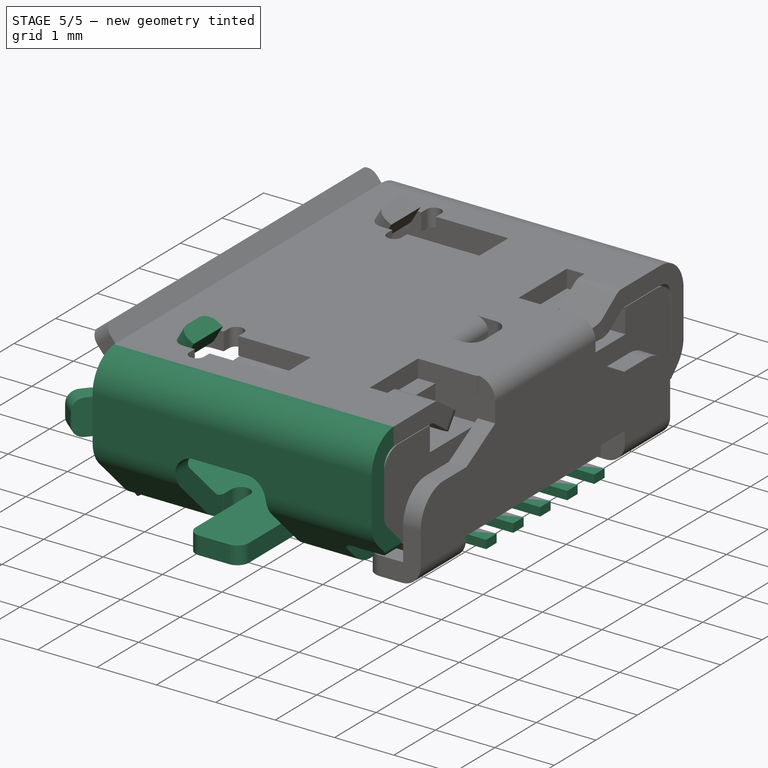
[diagram: stage 5 of 5 — iso view after this stage's code; geometry added in this stage tinted green]
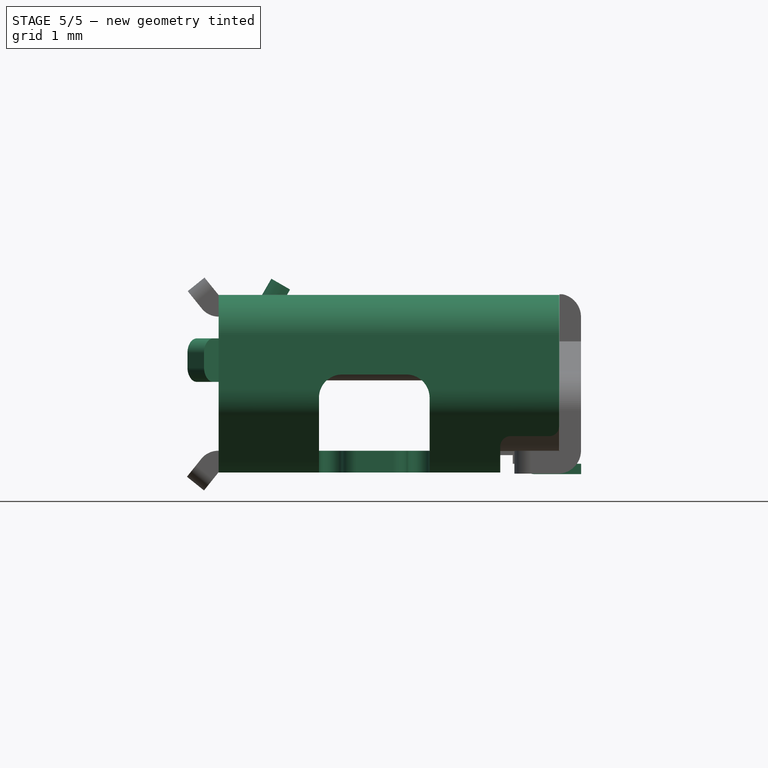
[diagram: stage 5 of 5 — front view after this stage's code; geometry added in this stage tinted green]
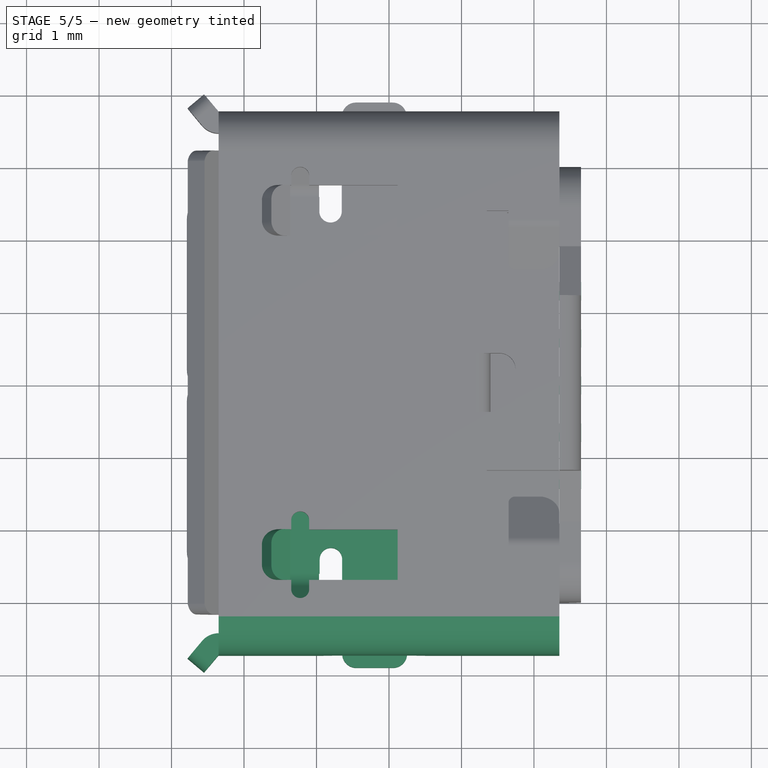
[diagram: stage 5 of 5 — top view after this stage's code; geometry added in this stage tinted green]
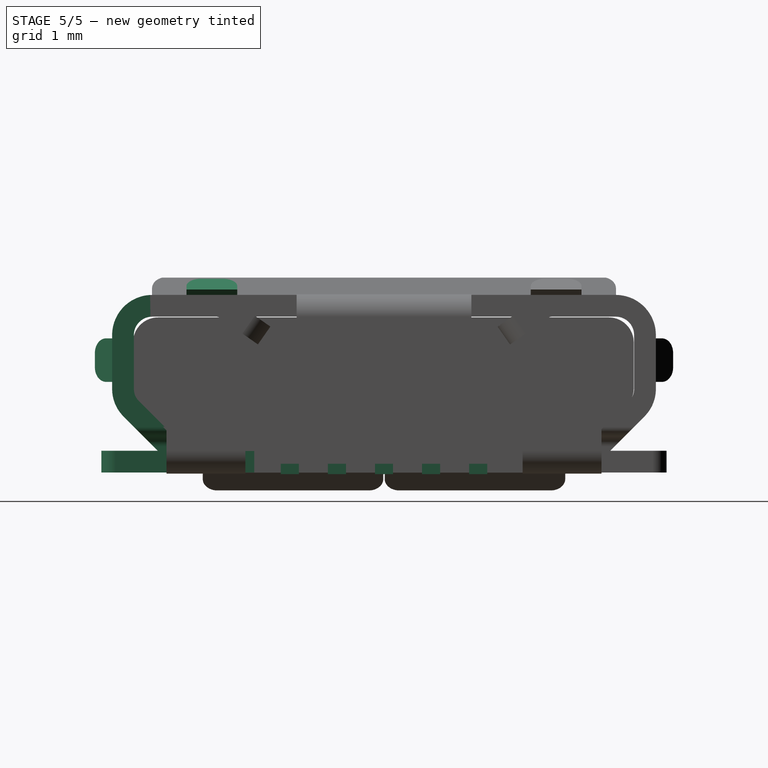
[diagram: stage 5 of 5 — right view after this stage's code; geometry added in this stage tinted green]
FEATURE [PartDesign::CoordinateSystem] LCS_0
  AttacherType = Attacher::AttachEngine3D
  MapMode = 2
  Support = -> [X_Axis]
FEATURE [Sketcher::SketchObject] Sketch  label="bottom-left-part-sketch"
  FullyConstrained = false
  MapMode = 5
  Placement = pos=(0.00500008,-2.80244e-08,0.0249994) rot=(0,0,1;0rad)
  sketch-geometry (38):
    g0: LineSegment StartX=-0.961 StartY=-2.39965 StartZ=0 EndX=-0.961 EndY=-2.59665 EndZ=0
    g1: LineSegment StartX=-0.961 StartY=-2.59665 StartZ=0 EndX=-2.35 EndY=-2.59665 EndZ=0
    g2: LineSegment StartX=-2.35 StartY=-2.59665 StartZ=0 EndX=-2.35 EndY=-2.499 EndZ=0
    g3: LineSegment StartX=-2.35 StartY=-2.499 StartZ=0 EndX=-2.355 EndY=-2.499 EndZ=0
    g4: LineSegment StartX=-2.355 StartY=-2.499 StartZ=0 EndX=-2.355 EndY=-0.01 EndZ=0
    g5: LineSegment StartX=-2.355 StartY=-0.01 StartZ=0 EndX=-1.746 EndY=-0.01 EndZ=0
    g6: LineSegment StartX=-2.355 StartY=0 StartZ=0 EndX=1.13 EndY=0 EndZ=0
    g7: LineSegment StartX=-2.355 StartY=0 StartZ=0 EndX=-2.355 EndY=-0.01 EndZ=0
    g8: LineSegment StartX=1.13 StartY=-0.01 StartZ=0 EndX=0.426746 EndY=-0.01 EndZ=0
    g9: LineSegment StartX=-1.72463 StartY=-0.809543 StartZ=0 EndX=0.405373 EndY=-0.809543 EndZ=0
    g10: LineSegment StartX=-1.63051 StartY=-0.229136 StartZ=0 EndX=-1.85661 EndY=-0.559102 EndZ=0
    g11: ArcOfCircle CenterX=-1.746 CenterY=-0.15 CenterZ=0 NormalX=0 NormalY=0 NormalZ=1 AngleXU=0 Radius=0.14 StartAngle=5.68244 EndAngle=7.85398
    g12: LineSegment StartX=-1.746 StartY=-0.01 StartZ=0 EndX=-1.746 EndY=-0.15 EndZ=0
    g13: LineSegment StartX=-1.746 StartY=-0.15 StartZ=0 EndX=-1.63051 EndY=-0.229136 EndZ=0
    g14: ArcOfCircle CenterX=-1.72463 CenterY=-0.649543 CenterZ=0 NormalX=0 NormalY=0 NormalZ=1 AngleXU=0 Radius=0.16 StartAngle=2.54085 EndAngle=4.71239
    g15: LineSegment StartX=-1.85661 StartY=-0.559102 StartZ=0 EndX=-1.72463 EndY=-0.649543 EndZ=0
    g16: LineSegment StartX=-1.72463 StartY=-0.649543 StartZ=0 EndX=-1.72463 EndY=-0.809543 EndZ=0
    g17: LineSegment StartX=-0.659627 StartY=0 StartZ=0 EndX=-0.659627 EndY=-0.809543 EndZ=0
    g18: ArcOfCircle CenterX=0.405373 CenterY=-0.649543 CenterZ=0 NormalX=0 NormalY=0 NormalZ=1 AngleXU=0 Radius=0.16 StartAngle=4.71239 EndAngle=6.88393
    g19: LineSegment StartX=0.537359 StartY=-0.559102 StartZ=0 EndX=0.311257 EndY=-0.229136 EndZ=0
    g20: ArcOfCircle CenterX=0.426746 CenterY=-0.15 CenterZ=0 NormalX=0 NormalY=0 NormalZ=1 AngleXU=0 Radius=0.14 StartAngle=1.5708 EndAngle=3.74233
    g21: LineSegment StartX=1.13 StartY=0 StartZ=0 EndX=1.13 EndY=-0.01 EndZ=0
    g22: LineSegment StartX=-0.961 StartY=-2.39965 StartZ=0 EndX=-0.651 EndY=-2.39965 EndZ=0
    g23: ArcOfCircle CenterX=-0.806 CenterY=-2.39965 CenterZ=0 NormalX=0 NormalY=0 NormalZ=1 AngleXU=0 Radius=0.155 StartAngle=0 EndAngle=3.14159
    g24: LineSegment StartX=-0.651 StartY=-2.39965 StartZ=0 EndX=-0.651 EndY=-3.70365 EndZ=0
    g25: LineSegment StartX=-0.651 StartY=-3.70365 StartZ=0 EndX=-0.455 EndY=-3.70365 EndZ=0
    g26: LineSegment StartX=-0.455 StartY=-3.70365 StartZ=0 EndX=-0.455 EndY=-3.89965 EndZ=0
    g27: ArcOfCircle CenterX=-0.455 CenterY=-3.70365 CenterZ=0 NormalX=0 NormalY=0 NormalZ=1 AngleXU=0 Radius=0.196 StartAngle=3.14159 EndAngle=4.71239
    g28: LineSegment StartX=-0.455 StartY=-3.89965 StartZ=0 EndX=0.049 EndY=-3.89965 EndZ=0
    g29: LineSegment StartX=-0.203 StartY=0 StartZ=0 EndX=-0.203 EndY=-3.89965 EndZ=0
    g30: ArcOfCircle CenterX=0.049 CenterY=-3.70365 CenterZ=0 NormalX=0 NormalY=0 NormalZ=1 AngleXU=0 Radius=0.196 StartAngle=4.71239 EndAngle=6.28319
    g31: LineSegment StartX=0.245 StartY=-2.39965 StartZ=0 EndX=0.245 EndY=-3.70365 EndZ=0
    g32: LineSegment StartX=0.555 StartY=-2.39965 StartZ=0 EndX=0.555 EndY=-2.59665 EndZ=0
    g33: ArcOfCircle CenterX=0.4 CenterY=-2.39965 CenterZ=0 NormalX=0 NormalY=0 NormalZ=1 AngleXU=0 Radius=0.155 StartAngle=5.77539e-07 EndAngle=3.14159
    g34: LineSegment StartX=0.555 StartY=-2.59665 StartZ=0 EndX=1.528 EndY=-2.59665 EndZ=0
    g35: LineSegment StartX=1.528 StartY=-2.59665 StartZ=0 EndX=1.528 EndY=-1.78965 EndZ=0
    g36: LineSegment StartX=1.528 StartY=-1.78965 StartZ=0 EndX=1.13 EndY=-1.78965 EndZ=0
    g37: LineSegment StartX=1.13 StartY=-1.78965 StartZ=0 EndX=1.13 EndY=-0.01 EndZ=0
  constraints (109):
    c: Vertical(g0)
    c: Coincident(g0,g1)
    c: Horizontal(g1)
    c: Coincident(g1,g2)
    c: Vertical(g2)
    c: Coincident(g2,g3)
    c: Coincident(g3,g4)
    c: Vertical(g4)
    c: Coincident(g4,g5)
    c: Horizontal(g5)
    c: Horizontal(g6)
    c: DistanceX(g6,g6) = 3.485
    c: DistanceX(g-1,g6) = 1.13
    c: PointOnObject(g6,g-1)
    c: Coincident(g7,g4)
    c: Vertical(g7)
    c: DistanceY(g7,g7) = 0.01
    c: Coincident(g7,g6)
    c: Horizontal(g8)
    c: Horizontal(g9)
    c: DistanceX(g5,g5) = 0.609
    c: Coincident(g11,g5)
    c: Vertical(g12)
    c: Coincident(g12,g5)
    c: Coincident(g12,g11)
    c: Radius(g11) = 0.14
    c: Coincident(g10,g11)
    c: Coincident(g13,g11)
    c: Coincident(g13,g10)
    c: Angle(g13,g12) = 2.17154
    c: Distance(g10) = 0.4
    c: Coincident(g15,g14)
    c: Coincident(g15,g14)
    c: Coincident(g14,g10)
    c: Perpendicular(g15,g10)
    c: Vertical(g16)
    c: Coincident(g16,g14)
    c: Coincident(g16,g14)
    c: Radius(g14) = 0.16
    c: Coincident(g9,g14)
    c: DistanceX(g9,g9) = 2.13
    c: PointOnObject(g17,g6)
    c: PointOnObject(g17,g9)
    c: Symmetric(g9,g9,g17)
    c: Coincident(g18,g9)
    c: Symmetric(g18,g14,g17)
    c: Symmetric(g18,g10,g17)
    c: Coincident(g19,g18)
    c: Symmetric(g19,g10,g17)
    c: Coincident(g20,g19)
    c: Symmetric(g20,g11,g17)
    c: Coincident(g8,g20)
    c: Symmetric(g5,g8,g17)
    c: Vertical(g21)
    c: Coincident(g21,g6)
    c: Coincident(g21,g8)
    c: DistanceY(g4,g4) = 2.489
    c: Horizontal(g3)
    c: DistanceX(g3,g3) = 0.005
    c: DistanceY(g2,g2) = 0.09765
    c: DistanceX(g1,g1) = 1.389
    c: DistanceY(g0,g0) = 0.197
    c: Horizontal(g22)
    c: Coincident(g22,g0)
    c: PointOnObject(g23,g22)
    c: Coincident(g23,g0)
    c: Coincident(g23,g22)
    c: Radius(g23) = 0.155
    c: Vertical(g24)
    c: Coincident(g24,g22)
    c: DistanceY(g24,g24) = 1.304
    c: Horizontal(g25)
    c: Vertical(g26)
    c: Coincident(g26,g25)
    c: Coincident(g25,g24)
    c: Equal(g26,g25)
    c: Coincident(g27,g25)
    c: Coincident(g27,g24)
    c: Coincident(g27,g26)
    c: Radius(g27) = 0.196
    c: Horizontal(g28)
    c: Coincident(g28,g26)
    c: DistanceX(g28,g28) = 0.504
    c: PointOnObject(g29,g28)
    c: PointOnObject(g29,g6)
    c: Symmetric(g26,g28,g29)
    c: Symmetric(g30,g25,g29)
    c: Coincident(g30,g28)
    c: Symmetric(g30,g24,g29)
    c: Vertical(g31)
    c: Coincident(g31,g30)
    c: Symmetric(g31,g22,g29)
    c: Vertical(g32)
    c: Coincident(g33,g31)
    c: Symmetric(g33,g23,g29)
    c: Coincident(g32,g33)
    c: Symmetric(g32,g0,g29)
    c: Horizontal(g34)
    c: Coincident(g34,g32)
    c: DistanceX(g34,g34) = 0.973
    c: Coincident(g35,g34)
    c: Vertical(g35)
    c: DistanceY(g35,g35) = 0.807
    c: Coincident(g36,g35)
    c: Horizontal(g36)
    c: Coincident(g37,g36)
    c: Vertical(g37)
    c: Coincident(g37,g8)
    c: Perpendicular(g10,g13)
FEATURE [PartDesign::Pad] Pad  label="part-1-src"
  AllowMultiFace = false
  Direction = (1,1,1)
  Length = 0.3
  Length2 = 100
  Placement = pos=(0.00500008,-2.80244e-08,0.0249994) rot=(0,0,1;0rad)
  Profile = -> Sketch
  Type = 0
FEATURE [Sketcher::SketchObject] Sketch001
  FullyConstrained = false
  MapMode = 5
  Placement = pos=(0.00500008,-2.80244e-08,0.0249994) rot=(1,0,0;3.14159rad)
  Support = -> [Pad]
  sketch-geometry (8):
    g0: LineSegment StartX=-2.009 StartY=1.496 StartZ=0 EndX=-1.563 EndY=1.496 EndZ=0
    g1: LineSegment StartX=-1.563 StartY=1.496 StartZ=0 EndX=-1.563 EndY=0 EndZ=0
    g2: LineSegment StartX=-1.563 StartY=0 StartZ=0 EndX=-2.009 EndY=0 EndZ=0
    g3: LineSegment StartX=-2.009 StartY=0 StartZ=0 EndX=-2.009 EndY=1.496 EndZ=0
    g4: LineSegment StartX=0.198 StartY=1.496 StartZ=0 EndX=0.644 EndY=1.496 EndZ=0
    g5: LineSegment StartX=0.644 StartY=1.496 StartZ=0 EndX=0.644 EndY=0 EndZ=0
    g6: LineSegment StartX=0.644 StartY=0 StartZ=0 EndX=0.198 EndY=0 EndZ=0
    g7: LineSegment StartX=0.198 StartY=0 StartZ=0 EndX=0.198 EndY=1.496 EndZ=0
  constraints (24):
    c: Coincident(g0,g1)
    c: Coincident(g1,g2)
    c: Coincident(g2,g3)
    c: Coincident(g3,g0)
    c: Horizontal(g0)
    c: Horizontal(g2)
    c: Vertical(g1)
    c: Vertical(g3)
    c: PointOnObject(g1,g-1)
    c: DistanceX(g0,g0) = 0.446
    c: DistanceY(g3,g3) = 1.496
    c: DistanceX(g1,g-1) = 1.563
    c: Coincident(g4,g5)
    c: Coincident(g5,g6)
    c: Coincident(g6,g7)
    c: Coincident(g7,g4)
    c: Horizontal(g4)
    c: Horizontal(g6)
    c: Vertical(g5)
    c: Vertical(g7)
    c: PointOnObject(g5,g-1)
    c: Equal(g0,g4)
    c: Equal(g7,g1)
    c: DistanceX(g-1,g6) = 0.198
FEATURE [PartDesign::Pocket] Pocket  label="Part-1-Pocket"
  AllowMultiFace = false
  Length = 0.1
  Length2 = 100
  Placement = pos=(0.00500008,-2.80244e-08,0.0249994) rot=(0,0,1;0rad)
  Profile = -> Sketch001
  Type = 0
FEATURE [Sketcher::SketchObject] Sketch003
  FullyConstrained = false
  MapMode = 5
  Placement = pos=(-1.09035e-09,-0.000203402,0.0249995) rot=(1,0,0;3.14159rad)
  Support = -> [Pad001]
  sketch-geometry (10):
    g0: LineSegment StartX=-1.563 StartY=0 StartZ=0 EndX=-1.563 EndY=-0.351 EndZ=0
    g1: LineSegment StartX=-1.563 StartY=-0.351 StartZ=0 EndX=-2.009 EndY=-0.351 EndZ=0
    g2: LineSegment StartX=-2.009 StartY=-0.351 StartZ=0 EndX=-2.009 EndY=1 EndZ=0
    g3: LineSegment StartX=0.644 StartY=1 StartZ=0 EndX=0.644 EndY=-0.351 EndZ=0
    g4: LineSegment StartX=0.644 StartY=-0.351 StartZ=0 EndX=0.198 EndY=-0.351 EndZ=0
    g5: LineSegment StartX=0.198 StartY=-0.351 StartZ=0 EndX=0.198 EndY=0 EndZ=0
    g6: LineSegment StartX=-2.009 StartY=1 StartZ=0 EndX=-1.563 EndY=1 EndZ=0
    g7: LineSegment StartX=-1.563 StartY=1 StartZ=0 EndX=-1.563 EndY=0 EndZ=0
    g8: LineSegment StartX=0.644 StartY=1 StartZ=0 EndX=0.198 EndY=1 EndZ=0
    g9: LineSegment StartX=0.198 StartY=1 StartZ=0 EndX=0.198 EndY=0 EndZ=0
  constraints (30):
    c: Coincident(g0,g1)
    c: Coincident(g1,g2)
    c: Horizontal(g1)
    c: Vertical(g0)
    c: Vertical(g2)
    c: Coincident(g3,g4)
    c: Coincident(g4,g5)
    c: Horizontal(g4)
    c: Vertical(g3)
    c: Vertical(g5)
    c: PointOnObject(g5,g-1)
    c: Equal(g1,g4)
    c: Equal(g0,g5)
    c: DistanceX(g1,g1) = 0.446
    c: DistanceX(g0,g-1) = 1.563
    c: DistanceX(g-1,g5) = 0.198
    c: DistanceY(g0,g0) = 0.351
    c: Coincident(g2,g6)
    c: Horizontal(g6)
    c: Coincident(g6,g7)
    c: Coincident(g7,g0)
    c: Vertical(g7)
    c: DistanceY(g7,g7) = 1
    c: PointOnObject(g0,g-1)
    c: Coincident(g3,g8)
    c: Horizontal(g8)
    c: Coincident(g8,g9)
    c: Coincident(g9,g5)
    c: Vertical(g9)
    c: PointOnObject(g8,g6)
FEATURE [PartDesign::Pocket] Pocket001  label="Part-2-Pocket"
  AllowMultiFace = false
  Length = 0.1
  Length2 = 100
  Placement = pos=(-1.09035e-09,-0.000203402,0.0249995) rot=(0,0,1;0rad)
  Profile = -> Sketch003
  Type = 0
FEATURE [Part::FeaturePython] Clone  label="Part-1"  # Draft clone (typed FeaturePython)
  Objects = -> [Pocket]
  Placement = pos=(0.00500008,-2.80244e-08,0.0249994) rot=(0,0,1;0rad)
  Scale = (1,1,1)
FEATURE [Part::FeaturePython] Clone001  label="Part-2"  # Draft clone (typed FeaturePython)
  Objects = -> [Pocket001]
  Placement = pos=(-1.09035e-09,-0.000203402,0.0249995) rot=(0,0,1;0rad)
  Scale = (1,1,1)
FEATURE [Sketcher::SketchObject] Sketch021
  FullyConstrained = false
  MapMode = 5
  Placement = pos=(0.00124056,-1.175,0.00299964) rot=(1,0,0;1.5708rad)
  sketch-geometry (9):
    g0: LineSegment StartX=1.851 StartY=0.265 StartZ=0 EndX=2.055 EndY=0.265 EndZ=0
    g1: LineSegment StartX=2.055 StartY=0.265 StartZ=0 EndX=2.055 EndY=0.142 EndZ=0
    g2: LineSegment StartX=2.055 StartY=0.142 StartZ=0 EndX=2.64876 EndY=0.142 EndZ=0
    g3: LineSegment StartX=2.64876 StartY=0.142 StartZ=0 EndX=2.64876 EndY=0 EndZ=0
    g4: LineSegment StartX=2.64876 StartY=0 StartZ=0 EndX=1.99676 EndY=0 EndZ=0
    g5: LineSegment StartX=1.851 StartY=0.265 StartZ=0 EndX=1.90266 EndY=0.0722058 EndZ=0
    g6: LineSegment StartX=1.90266 StartY=0.0722058 StartZ=0 EndX=1.99676 EndY=0.09742 EndZ=0
    g7: LineSegment StartX=1.99676 StartY=0.09742 StartZ=0 EndX=1.99676 EndY=0 EndZ=0
    g8: ArcOfCircle CenterX=1.99676 CenterY=0.09742 CenterZ=0 NormalX=0 NormalY=0 NormalZ=1 AngleXU=0 Radius=0.09742 StartAngle=3.40339 EndAngle=4.71239
  constraints (26):
    c: Horizontal(g0)
    c: Coincident(g0,g1)
    c: Vertical(g1)
    c: Coincident(g1,g2)
    c: Horizontal(g2)
    c: Coincident(g2,g3)
    c: PointOnObject(g3,g-1)
    c: Vertical(g3)
    c: Coincident(g3,g4)
    c: Horizontal(g4)
    c: Coincident(g5,g0)
    c: Angle(g-1,g5) = 1.8326
    c: Coincident(g6,g5)
    c: Coincident(g7,g6)
    c: Vertical(g7)
    c: Coincident(g4,g7)
    c: Coincident(g8,g6)
    c: Coincident(g8,g4)
    c: Coincident(g8,g5)
    c: Radius(g8) = 0.09742
    c: DistanceX(g4,g4) = 0.652
    c: DistanceY(g3,g3) = 0.142
    c: DistanceX(g0,g0) = 0.204
    c: DistanceY(g1,g1) = 0.123
    c: Perpendicular(g5,g6)
    c: DistanceX(g-1,g0) = 1.851
FEATURE [PartDesign::Pad] Pad010
  AllowMultiFace = false
  Direction = (1,1,1)
  Length = 0.25
  Length2 = 100
  Placement = pos=(0.00124056,-1.175,0.00299964) rot=(1,0,0;1.5708rad)
  Profile = -> Sketch021
  Type = 0
FEATURE [Part::FeaturePython] Array  label="pads"  # Draft array (typed FeaturePython)
  Angle = 360
  ArrayType = 0
  Axis = (0,0,1)
  Base = -> Pad010
  Center = (0,0,0)
  Fuse = false
  IntervalAxis = (0,0,0)
  IntervalX = (1,0,0)
  IntervalY = (0,0.65,0)
  IntervalZ = (0,0,0)
  NumberPolar = 1
  NumberX = 1
  NumberY = 5
  NumberZ = 1
FEATURE [Part::FeaturePython] Clone010  label="Part-pads"  # Draft clone (typed FeaturePython)
  Objects = -> [Array]
  Scale = (1,1,1)
FEATURE [Sketcher::SketchObject] Sketch030
  FullyConstrained = false
  MapMode = 5
  Placement = pos=(0.00500004,-1.3,-0.00500052) rot=(1,0,0;1.5708rad)
  sketch-geometry (6):
    g0: LineSegment StartX=-1.15 StartY=1.515 StartZ=0 EndX=1.15 EndY=1.515 EndZ=0
    g1: LineSegment StartX=1.15 StartY=1.515 StartZ=0 EndX=1.15 EndY=1.42 EndZ=0
    g2: LineSegment StartX=-1.055 StartY=1.42 StartZ=0 EndX=1.15 EndY=1.42 EndZ=0
    g3: ArcOfCircle CenterX=-1.055 CenterY=1.515 CenterZ=0 NormalX=0 NormalY=0 NormalZ=1 AngleXU=0 Radius=0.095 StartAngle=3.14159 EndAngle=4.71239
    g4: LineSegment StartX=-1.055 StartY=1.515 StartZ=0 EndX=-1.055 EndY=1.42 EndZ=0
    g5: LineSegment StartX=-1.15 StartY=1.515 StartZ=0 EndX=-1.055 EndY=1.515 EndZ=0
  constraints (17):
    c: Horizontal(g0)
    c: DistanceX(g0,g0) = 2.3
    c: Coincident(g1,g0)
    c: Vertical(g1)
    c: DistanceY(g1,g1) = 0.095
    c: Horizontal(g2)
    c: Coincident(g1,g2)
    c: Coincident(g3,g2)
    c: Coincident(g3,g0)
    c: Vertical(g4)
    c: Coincident(g2,g4)
    c: Coincident(g3,g4)
    c: Horizontal(g5)
    c: Coincident(g5,g3)
    c: Coincident(g5,g0)
    c: DistanceX(g-1,g1) = 1.15
    c: DistanceY(g-1,g1) = 1.42
FEATURE [PartDesign::Pad] Pad014
  AllowMultiFace = false
  Direction = (1,1,1)
  Length = 0.37
  Length2 = 100
  Midplane = true
  Placement = pos=(0.00500004,-1.3,-0.00500052) rot=(1,0,0;1.5708rad)
  Profile = -> Sketch030
  Type = 0
FEATURE [Part::FeaturePython] Array001  label="contacts"  # Draft array (typed FeaturePython)
  Angle = 360
  ArrayType = 0
  Axis = (0,0,1)
  Base = -> Pad014
  Center = (0,0,0)
  Fuse = false
  IntervalAxis = (0,0,0)
  IntervalX = (0,0,0)
  IntervalY = (0,0.649,0)
  IntervalZ = (0,0,0)
  NumberPolar = 1
  NumberX = 1
  NumberY = 5
  NumberZ = 1
FEATURE [Part::FeaturePython] Clone015  label="Contacts"  # Draft clone (typed FeaturePython)
  Objects = -> [Array001]
  Scale = (1,1,1)
FEATURE [Part::MultiFuse] Fusion001  label="Chassis-union"
  Shapes = -> [Clone,Clone001,Clone002,Clone003,Part__Mirroring001,Part__Mirroring002,Part__Mirroring003,Clone008,Clone004,Clone005,Clone007,Clone011,Clone012,Clone013,Clone016]
FEATURE [Part::FeaturePython] Clone017  label="Chassis"  # Draft clone (typed FeaturePython)
  Objects = -> [Fusion001]
  Scale = (1,1,1)
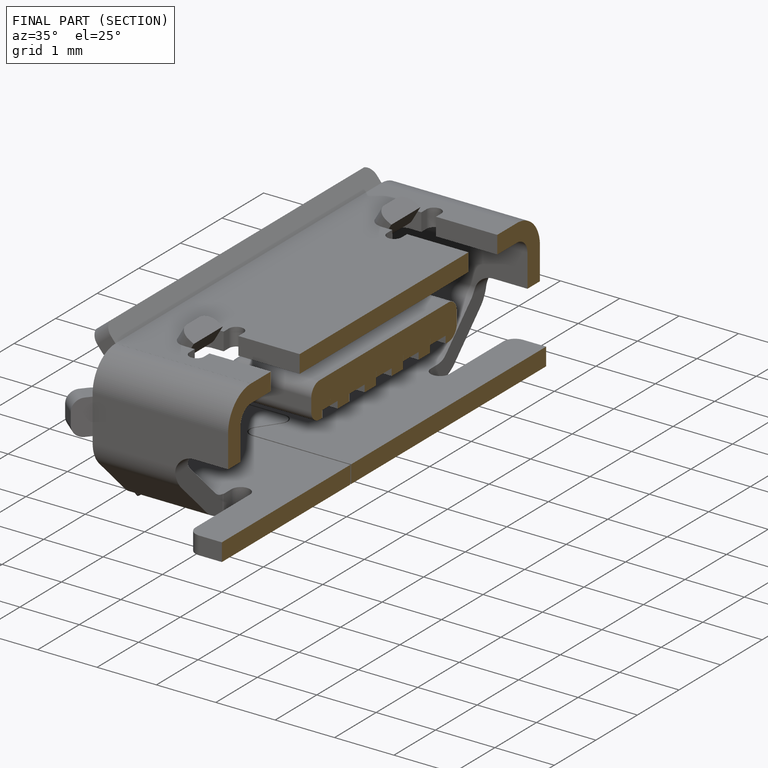
[diagram: finished part — half-section view (interior)]
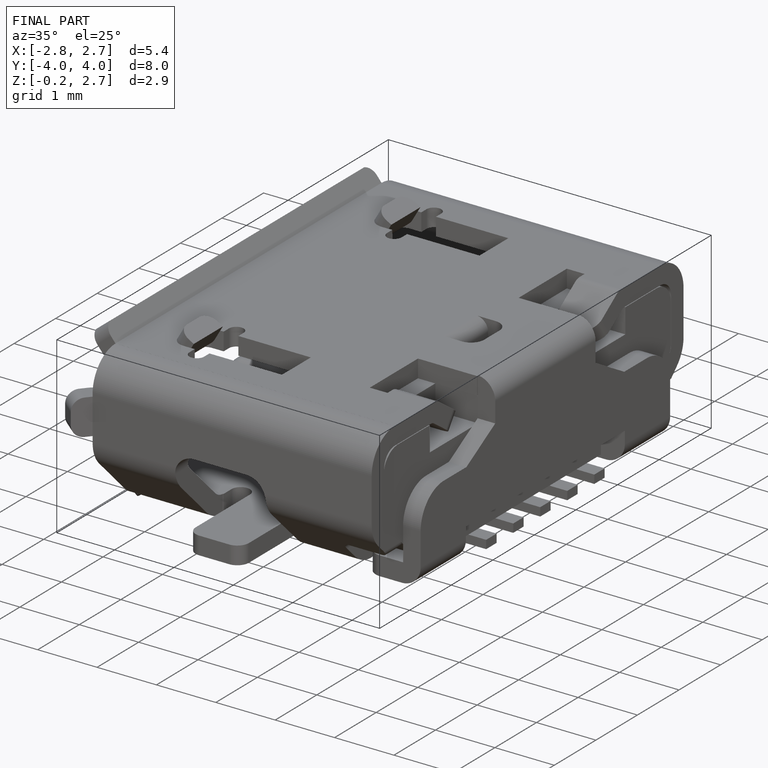
[diagram: finished part — iso view with bounding-box wireframe]
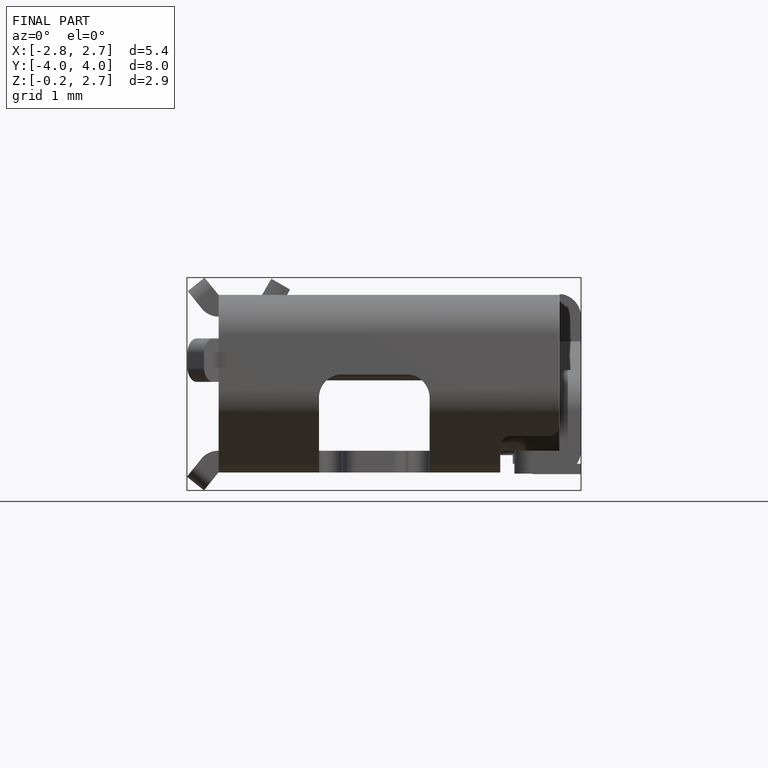
[diagram: finished part — front view with bounding-box wireframe]
